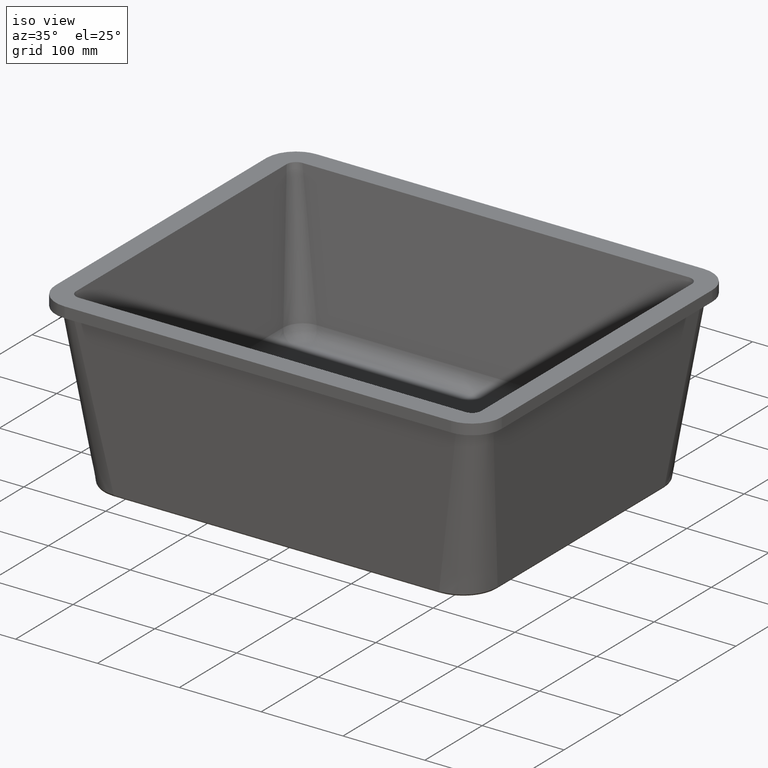
[diagram: clean part render]
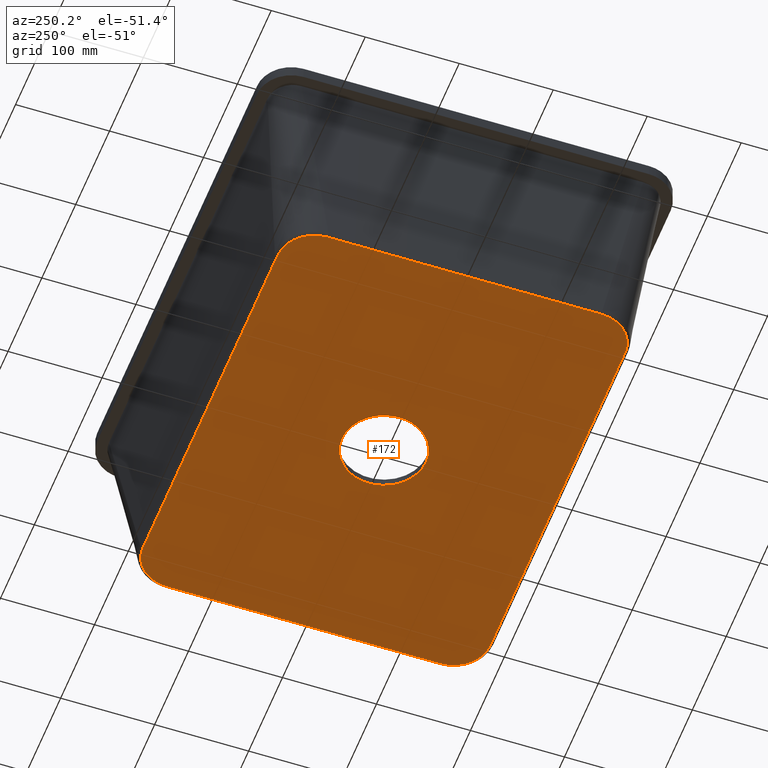
[diagram: tour spotlight — one face highlighted and labeled with its STEP entity id]
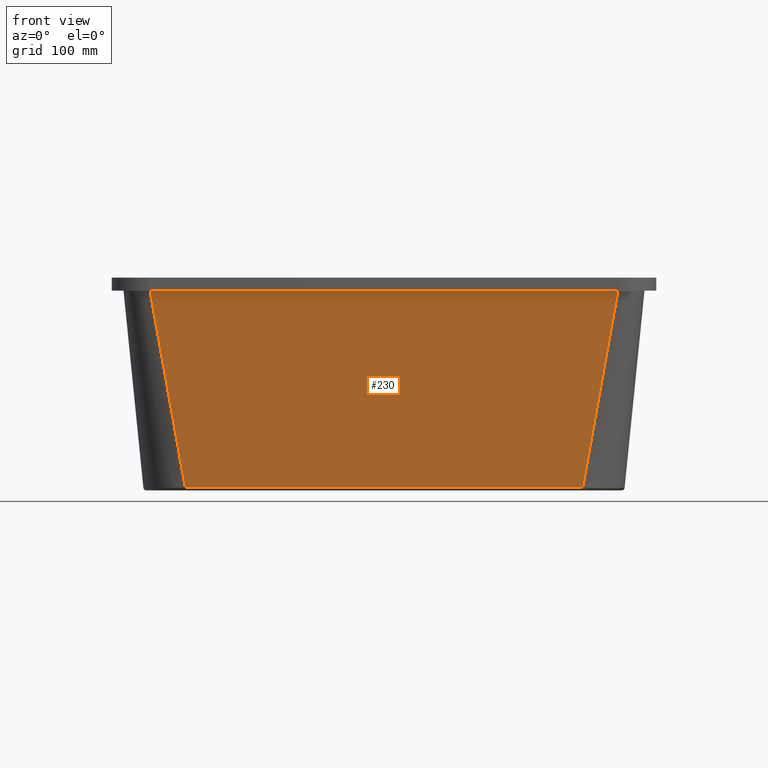
[diagram: tour spotlight — one face highlighted and labeled with its STEP entity id]
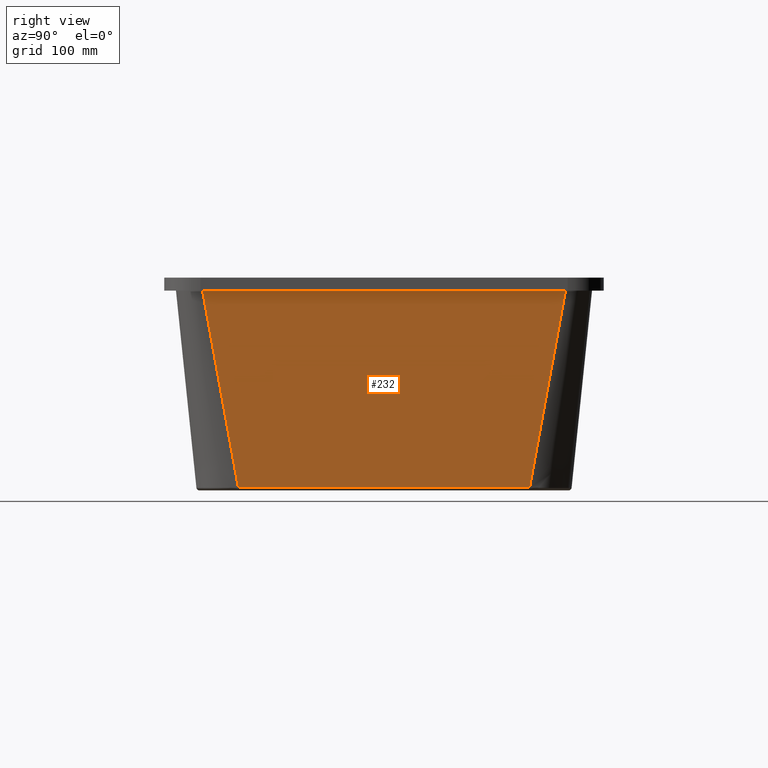
[diagram: tour spotlight — one face highlighted and labeled with its STEP entity id]
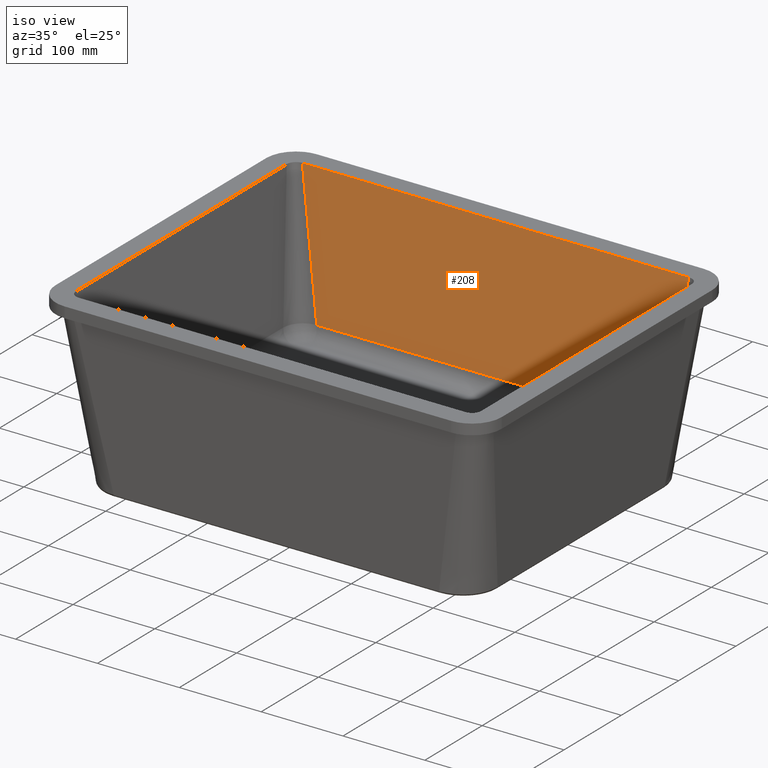
[diagram: tour spotlight — one face highlighted and labeled with its STEP entity id]
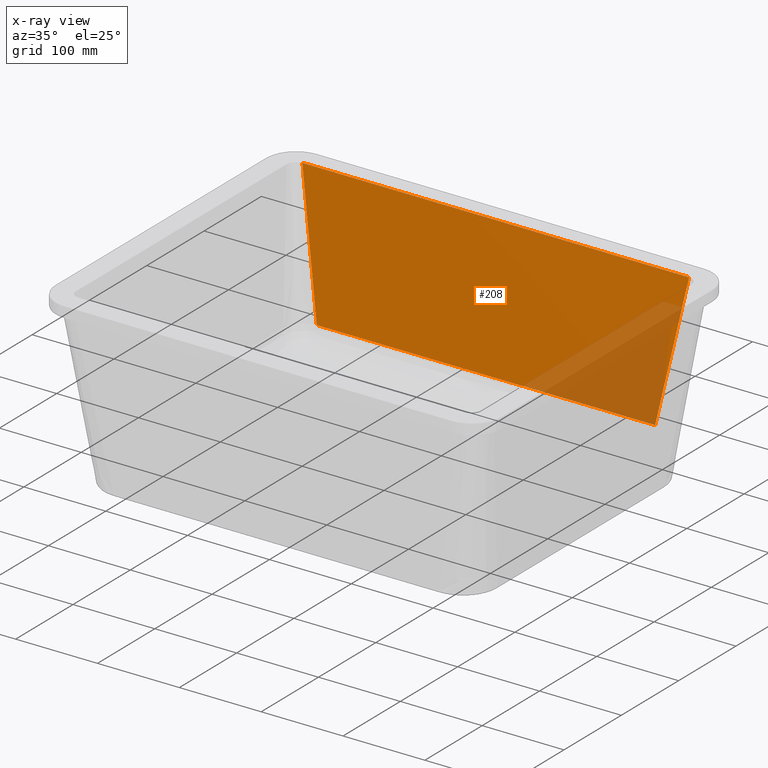
[diagram: x-ray of the same camera — body ghosted, this tour face saturated]
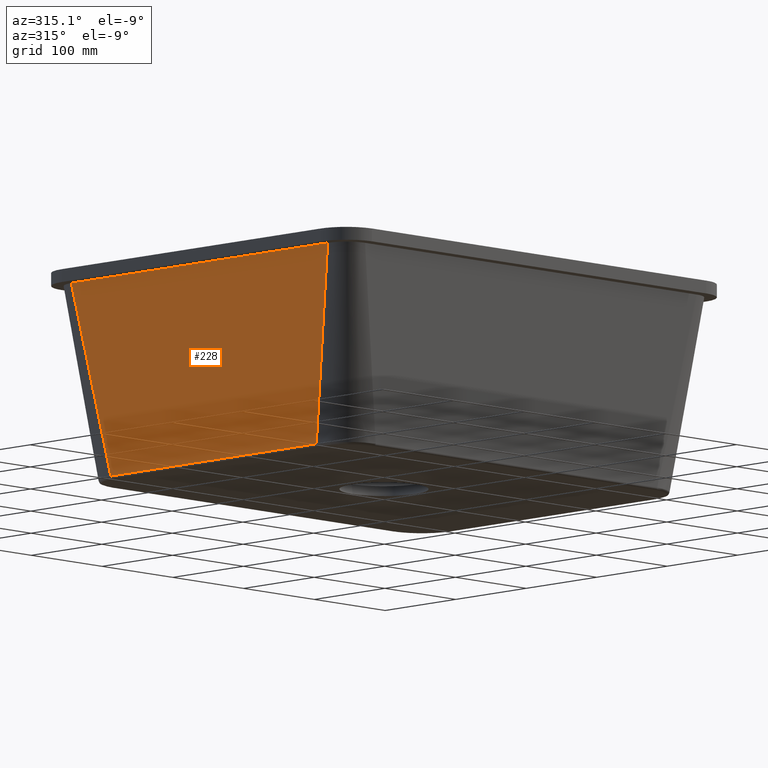
[diagram: tour spotlight — one face highlighted and labeled with its STEP entity id]
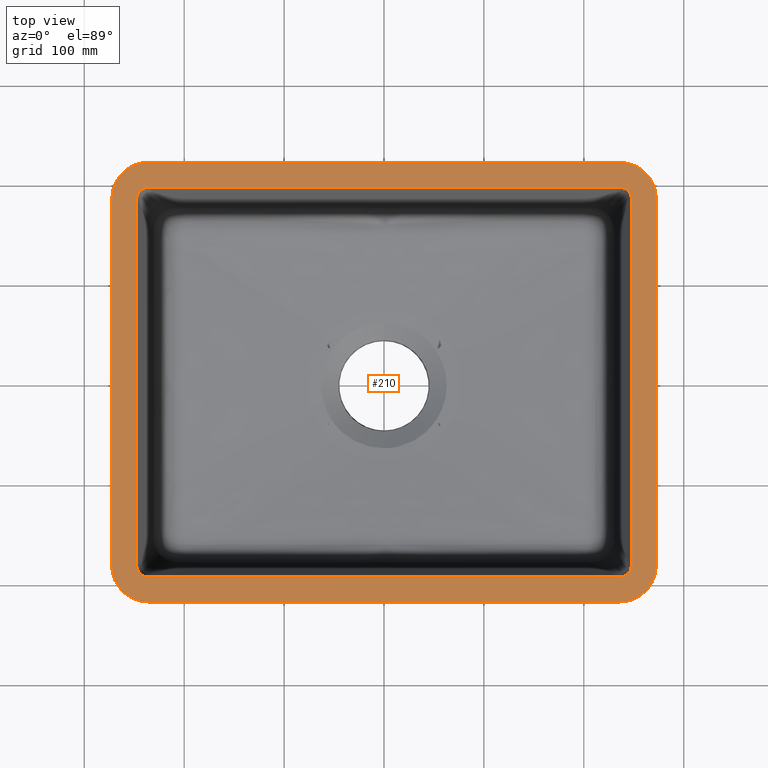
[diagram: tour spotlight — one face highlighted and labeled with its STEP entity id]
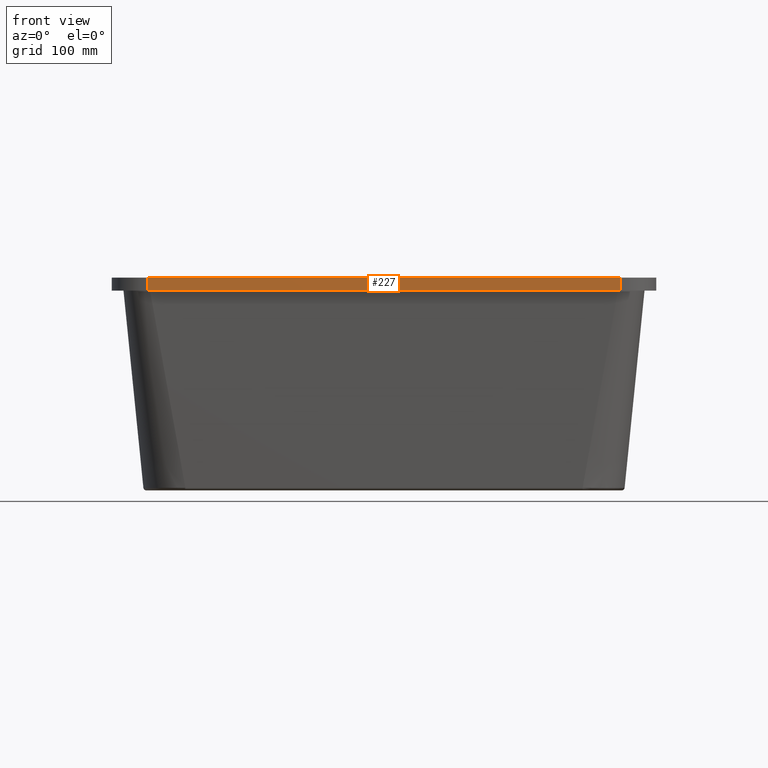
[diagram: tour spotlight — one face highlighted and labeled with its STEP entity id]
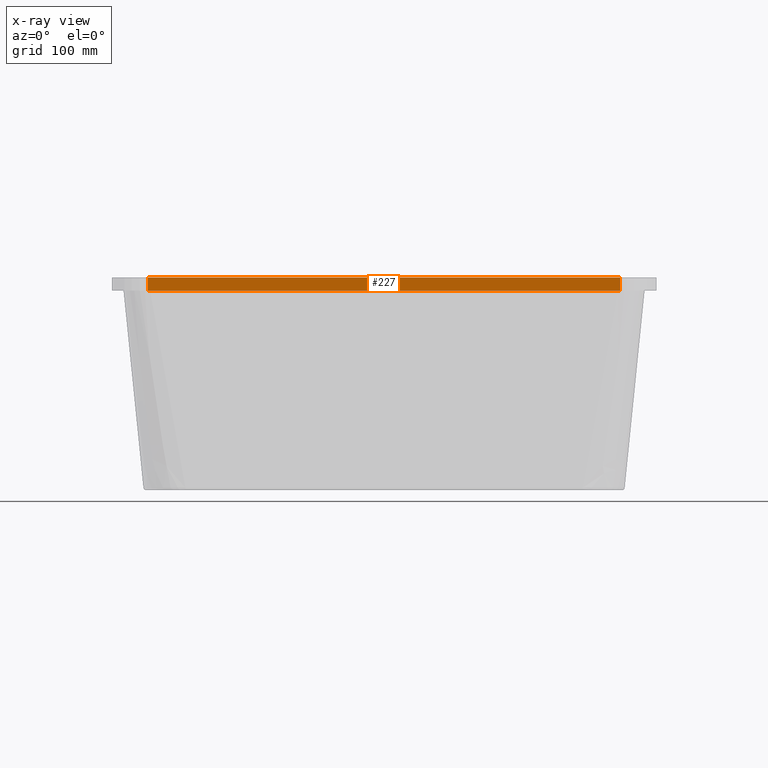
[diagram: x-ray of the same camera — body ghosted, this tour face saturated]
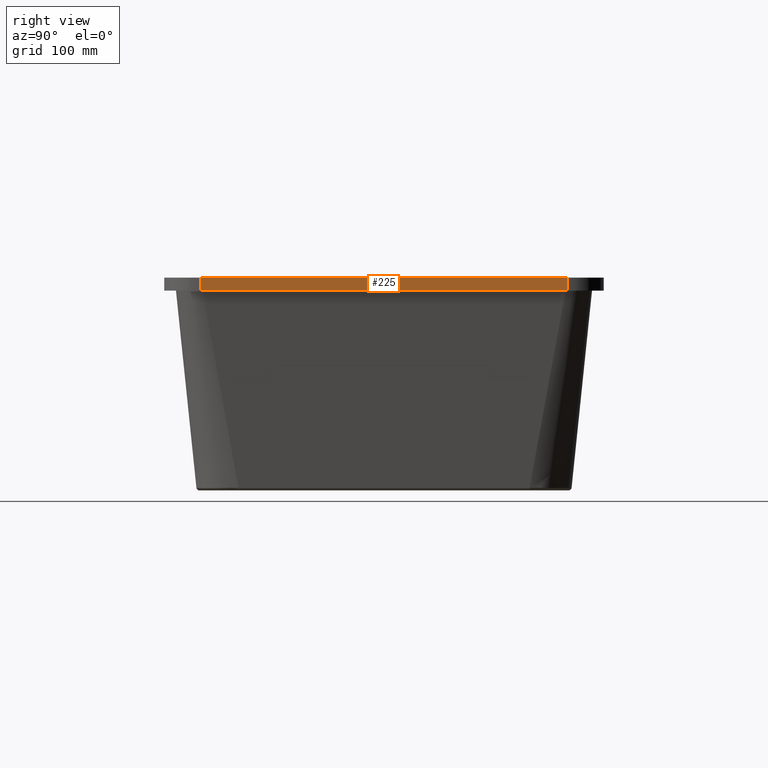
[diagram: tour spotlight — one face highlighted and labeled with its STEP entity id]
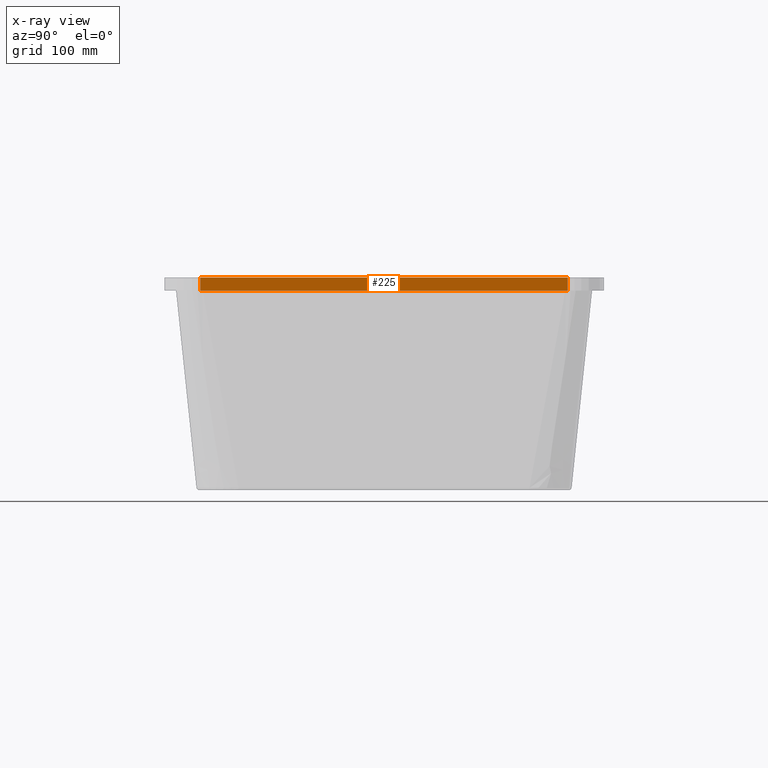
[diagram: x-ray of the same camera — body ghosted, this tour face saturated]
A machine part: a face-by-face anatomy tour. The part has 70 B-rep faces; the first image is the clean iso view, then the 8 largest visible faces are spotlighted one at a time (largest first), each with its STEP entity span.

Face 1 — auxiliary view, entity #172. In plain terms, the highlighted face is a freeform B-spline surface patch.
Definition (entity closure, byte-faithful):
#120=B_SPLINE_SURFACE_WITH_KNOTS('',1,1,((#1509,#1510),(#1511,#1512)),
 .UNSPECIFIED.,.F.,.F.,.F.,(2,2),(2,2),(0.,1.),(0.,1.),.UNSPECIFIED.);
#157=(
BOUNDED_CURVE()
B_SPLINE_CURVE(3,(#1407,#1408,#1409,#1410,#1411,#1412,#1413,#1414,#1415,
#1416,#1417,#1418,#1419,#1420,#1421,#1422),.UNSPECIFIED.,.F.,.F.)
B_SPLINE_CURVE_WITH_KNOTS((4,2,2,2,2,2,2,4),(0.,0.25,0.375,0.5,0.625,0.75,
0.875,1.),.UNSPECIFIED.)
CURVE()
GEOMETRIC_REPRESENTATION_ITEM()
RATIONAL_B_SPLINE_CURVE((1.,1.,1.,1.,1.,1.,1.,1.,1.,1.,1.,1.,1.,1.,1.,1.))
REPRESENTATION_ITEM('')
);
#158=(
BOUNDED_CURVE()
B_SPLINE_CURVE(3,(#1434,#1435,#1436,#1437,#1438,#1439,#1440,#1441,#1442,
#1443,#1444,#1445,#1446,#1447,#1448,#1449),.UNSPECIFIED.,.F.,.F.)
B_SPLINE_CURVE_WITH_KNOTS((4,2,2,2,2,2,2,4),(0.,0.125,0.25,0.375,0.5,0.625,
0.75,1.),.UNSPECIFIED.)
CURVE()
GEOMETRIC_REPRESENTATION_ITEM()
RATIONAL_B_SPLINE_CURVE((1.,1.,1.,1.,1.,1.,1.,1.,1.,1.,1.,1.,1.,1.,1.,1.))
REPRESENTATION_ITEM('')
);
#159=(
BOUNDED_CURVE()
B_SPLINE_CURVE(3,(#1461,#1462,#1463,#1464,#1465,#1466,#1467,#1468,#1469,
#1470,#1471,#1472,#1473,#1474,#1475,#1476),.UNSPECIFIED.,.F.,.F.)
B_SPLINE_CURVE_WITH_KNOTS((4,2,2,2,2,2,2,4),(0.,0.25,0.375,0.5,0.625,0.75,
0.875,1.),.UNSPECIFIED.)
CURVE()
GEOMETRIC_REPRESENTATION_ITEM()
RATIONAL_B_SPLINE_CURVE((1.,1.,1.,1.,1.,1.,1.,1.,1.,1.,1.,1.,1.,1.,1.,1.))
REPRESENTATION_ITEM('')
);
#160=(
BOUNDED_CURVE()
B_SPLINE_CURVE(3,(#1488,#1489,#1490,#1491,#1492,#1493,#1494,#1495,#1496,
#1497,#1498,#1499,#1500,#1501,#1502,#1503),.UNSPECIFIED.,.F.,.F.)
B_SPLINE_CURVE_WITH_KNOTS((4,2,2,2,2,2,2,4),(0.,0.125,0.25,0.375,0.5,0.625,
0.75,1.),.UNSPECIFIED.)
CURVE()
GEOMETRIC_REPRESENTATION_ITEM()
RATIONAL_B_SPLINE_CURVE((1.,1.,1.,1.,1.,1.,1.,1.,1.,1.,1.,1.,1.,1.,1.,1.))
REPRESENTATION_ITEM('')
);
#162=FACE_BOUND('',#311,.T.);
#163=FACE_BOUND('',#312,.T.);
#172=ADVANCED_FACE('',(#162,#163),#120,.F.);
#311=EDGE_LOOP('',(#405,#406));
#312=EDGE_LOOP('',(#407,#408,#409,#410,#411,#412,#413,#414,#415,#416,#417,
#418));
#405=ORIENTED_EDGE('',*,*,#883,.T.);
#406=ORIENTED_EDGE('',*,*,#888,.T.);
#407=ORIENTED_EDGE('',*,*,#889,.F.);
#408=ORIENTED_EDGE('',*,*,#890,.F.);
#409=ORIENTED_EDGE('',*,*,#891,.F.);
#410=ORIENTED_EDGE('',*,*,#892,.F.);
#411=ORIENTED_EDGE('',*,*,#893,.F.);
#412=ORIENTED_EDGE('',*,*,#894,.F.);
#413=ORIENTED_EDGE('',*,*,#895,.F.);
#414=ORIENTED_EDGE('',*,*,#896,.F.);
#415=ORIENTED_EDGE('',*,*,#897,.F.);
#416=ORIENTED_EDGE('',*,*,#898,.F.);
#417=ORIENTED_EDGE('',*,*,#899,.F.);
#418=ORIENTED_EDGE('',*,*,#900,.F.);
#765=VERTEX_POINT('',#1371);
#766=VERTEX_POINT('',#1372);
#769=VERTEX_POINT('',#1405);
#770=VERTEX_POINT('',#1406);
#771=VERTEX_POINT('',#1423);
#772=VERTEX_POINT('',#1428);
#773=VERTEX_POINT('',#1433);
#774=VERTEX_POINT('',#1450);
#775=VERTEX_POINT('',#1455);
#776=VERTEX_POINT('',#1460);
#777=VERTEX_POINT('',#1477);
#778=VERTEX_POINT('',#1482);
#779=VERTEX_POINT('',#1487);
#780=VERTEX_POINT('',#1504);
#883=EDGE_CURVE('',#765,#766,#1067,.T.);
#888=EDGE_CURVE('',#766,#765,#1070,.T.);
#889=EDGE_CURVE('',#769,#770,#1071,.T.);
#890=EDGE_CURVE('',#771,#769,#157,.T.);
#891=EDGE_CURVE('',#772,#771,#1072,.T.);
#892=EDGE_CURVE('',#773,#772,#1073,.T.);
#893=EDGE_CURVE('',#774,#773,#158,.T.);
#894=EDGE_CURVE('',#775,#774,#1074,.T.);
#895=EDGE_CURVE('',#776,#775,#1075,.T.);
#896=EDGE_CURVE('',#777,#776,#159,.T.);
#897=EDGE_CURVE('',#778,#777,#1076,.T.);
#898=EDGE_CURVE('',#779,#778,#1077,.T.);
#899=EDGE_CURVE('',#780,#779,#160,.T.);
#900=EDGE_CURVE('',#770,#780,#1078,.T.);
#1067=B_SPLINE_CURVE_WITH_KNOTS('',3,(#1353,#1354,#1355,#1356,#1357,#1358,
#1359,#1360,#1361,#1362,#1363,#1364,#1365,#1366,#1367,#1368,#1369,#1370),
 .UNSPECIFIED.,.F.,.F.,(4,2,2,2,2,2,2,2,4),(0.,0.125,0.25,0.375,0.5,0.625,
0.75,0.875,1.),.UNSPECIFIED.);
#1070=B_SPLINE_CURVE_WITH_KNOTS('',3,(#1382,#1383,#1384,#1385,#1386,#1387,
#1388,#1389,#1390,#1391,#1392,#1393,#1394,#1395,#1396,#1397,#1398,#1399),
 .UNSPECIFIED.,.F.,.F.,(4,2,2,2,2,2,2,2,4),(0.,0.125,0.25,0.375,0.5,0.625,
0.75,0.875,1.),.UNSPECIFIED.);
#1071=B_SPLINE_CURVE_WITH_KNOTS('',3,(#1401,#1402,#1403,#1404),
 .UNSPECIFIED.,.F.,.F.,(4,4),(0.,1.),.UNSPECIFIED.);
#1072=B_SPLINE_CURVE_WITH_KNOTS('',3,(#1424,#1425,#1426,#1427),
 .UNSPECIFIED.,.F.,.F.,(4,4),(0.,1.),.UNSPECIFIED.);
#1073=B_SPLINE_CURVE_WITH_KNOTS('',3,(#1429,#1430,#1431,#1432),
 .UNSPECIFIED.,.F.,.F.,(4,4),(0.,1.),.UNSPECIFIED.);
#1074=B_SPLINE_CURVE_WITH_KNOTS('',3,(#1451,#1452,#1453,#1454),
 .UNSPECIFIED.,.F.,.F.,(4,4),(0.,1.),.UNSPECIFIED.);
#1075=B_SPLINE_CURVE_WITH_KNOTS('',3,(#1456,#1457,#1458,#1459),
 .UNSPECIFIED.,.F.,.F.,(4,4),(0.,1.),.UNSPECIFIED.);
#1076=B_SPLINE_CURVE_WITH_KNOTS('',3,(#1478,#1479,#1480,#1481),
 .UNSPECIFIED.,.F.,.F.,(4,4),(0.,1.),.UNSPECIFIED.);
#1077=B_SPLINE_CURVE_WITH_KNOTS('',3,(#1483,#1484,#1485,#1486),
 .UNSPECIFIED.,.F.,.F.,(4,4),(0.,1.),.UNSPECIFIED.);
#1078=B_SPLINE_CURVE_WITH_KNOTS('',3,(#1505,#1506,#1507,#1508),
 .UNSPECIFIED.,.F.,.F.,(4,4),(0.,1.),.UNSPECIFIED.);
#1353=CARTESIAN_POINT('',(-1.56543446082893E-14,-44.7354157086448,-212.999999999934));
#1354=CARTESIAN_POINT('',(5.87507504538506,-44.7354157086448,-212.999999999934));
#1355=CARTESIAN_POINT('',(11.6925928217986,-43.5781055769196,-212.999999999934));
#1356=CARTESIAN_POINT('',(22.5464120415282,-39.0821643262822,-212.999999999934));
#1357=CARTESIAN_POINT('',(27.4791662069128,-35.7863582545704,-212.999999999934));
#1358=CARTESIAN_POINT('',(35.7862654066512,-27.4790733589936,-212.999999999934));
#1359=CARTESIAN_POINT('',(39.0822856374443,-22.5464622927028,-212.999999999934));
#1360=CARTESIAN_POINT('',(43.5779842657577,-11.6925425706239,-212.999999999934));
#1361=CARTESIAN_POINT('',(44.7354813618992,-5.87407182987342,-212.999999999934));
#1362=CARTESIAN_POINT('',(44.7353500553907,5.87407182987357,-212.999999999934));
#1363=CARTESIAN_POINT('',(43.5781055772131,11.6925928208449,-212.999999999934));
#1364=CARTESIAN_POINT('',(39.0821643259888,22.546412042482,-212.999999999934));
#1365=CARTESIAN_POINT('',(35.786358256596,27.4791662046622,-212.999999999934));
#1366=CARTESIAN_POINT('',(27.479073356968,35.7862654089019,-212.999999999934));
#1367=CARTESIAN_POINT('',(22.5464622929202,39.0822856372298,-212.999999999934));
#1368=CARTESIAN_POINT('',(11.6925425704066,43.5779842659722,-212.999999999934));
#1369=CARTESIAN_POINT('',(5.87440191187048,44.735415708645,-212.999999999934));
#1370=CARTESIAN_POINT('',(0.,44.735415708645,-212.999999999934));
#1371=CARTESIAN_POINT('',(-6.3554323245927E-14,-44.7354198358257,-212.999952826041));
#1372=CARTESIAN_POINT('',(-5.54645300874058E-14,44.7354198358258,-212.999952826041));
#1382=CARTESIAN_POINT('',(-5.23802823096001E-13,44.735415708645,-212.999999999934));
#1383=CARTESIAN_POINT('',(-5.87507504538545,44.735415708645,-212.999999999934));
#1384=CARTESIAN_POINT('',(-11.6925928206659,43.5781055771452,-212.999999999934));
#1385=CARTESIAN_POINT('',(-22.546412042662,39.0821643260568,-212.999999999934));
#1386=CARTESIAN_POINT('',(-27.4791662072792,35.7863582544485,-212.999999999934));
#1387=CARTESIAN_POINT('',(-35.7862654062859,27.4790733591157,-212.999999999934));
#1388=CARTESIAN_POINT('',(-39.0822856374446,22.5464622927032,-212.999999999934));
#1389=CARTESIAN_POINT('',(-43.5779842657583,11.6925425706236,-212.999999999934));
#1390=CARTESIAN_POINT('',(-44.7354813620831,5.87407182870765,-212.999999999934));
#1391=CARTESIAN_POINT('',(-44.7353500552078,-5.87407182870743,-212.999999999934));
#1392=CARTESIAN_POINT('',(-43.5781055776428,-11.6925928193659,-212.999999999934));
#1393=CARTESIAN_POINT('',(-39.0821643255602,-22.5464120439608,-212.999999999934));
#1394=CARTESIAN_POINT('',(-35.7863582546917,-27.4791662069943,-212.999999999934));
#1395=CARTESIAN_POINT('',(-27.4790733588734,-35.7862654065696,-212.999999999934));
#1396=CARTESIAN_POINT('',(-22.5464622913616,-39.0822856380275,-212.999999999934));
#1397=CARTESIAN_POINT('',(-11.6925425719664,-43.5779842651743,-212.999999999934));
#1398=CARTESIAN_POINT('',(-5.87440191064468,-44.7354157086449,-212.999999999934));
#1399=CARTESIAN_POINT('',(-5.55111512312578E-13,-44.7354157086448,-212.999999999934));
#1401=CARTESIAN_POINT('',(-198.805185604876,-184.785871795354,-212.999999999934));
#1402=CARTESIAN_POINT('',(-132.536790403251,-184.785871795354,-212.999999999934));
#1403=CARTESIAN_POINT('',(-66.2683952016253,-184.785871795354,-212.999999999934));
#1404=CARTESIAN_POINT('',(5.55111512312578E-14,-184.785871795354,-212.999999999934));
#1405=CARTESIAN_POINT('',(-198.805185604876,-184.785871795354,-212.999999999934));
#1406=CARTESIAN_POINT('',(0.000754325076873785,-184.785871795354,-212.999999999934));
#1407=CARTESIAN_POINT('',(-237.873638284546,-145.678859501033,-212.999999999934));
#1408=CARTESIAN_POINT('',(-237.873638284689,-150.82222054371,-212.999999999934));
#1409=CARTESIAN_POINT('',(-236.854450106116,-155.978208137484,-212.999999999934));
#1410=CARTESIAN_POINT('',(-233.937723808414,-163.035738064138,-212.999999999934));
#1411=CARTESIAN_POINT('',(-232.725251547604,-165.311124399883,-212.999999999934));
#1412=CARTESIAN_POINT('',(-229.869384491732,-169.585583102005,-212.999999999934));
#1413=CARTESIAN_POINT('',(-228.251642620895,-171.553933735067,-212.999999999934));
#1414=CARTESIAN_POINT('',(-224.646528285539,-175.161762520158,-212.999999999934));
#1415=CARTESIAN_POINT('',(-222.635282417874,-176.813517234454,-212.999999999935));
#1416=CARTESIAN_POINT('',(-218.387196915651,-179.649509085898,-212.999999999934));
#1417=CARTESIAN_POINT('',(-216.142155903128,-180.849247781116,-212.999999999934));
#1418=CARTESIAN_POINT('',(-211.40708241728,-182.8068084288,-212.999999999934));
#1419=CARTESIAN_POINT('',(-208.923651096491,-183.554655017744,-212.999999999935));
#1420=CARTESIAN_POINT('',(-203.926588101796,-184.538175362437,-212.999999999934));
#1421=CARTESIAN_POINT('',(-201.386633323958,-184.785871795067,-212.999999999934));
#1422=CARTESIAN_POINT('',(-198.805185604876,-184.785871795354,-212.999999999934));
#1423=CARTESIAN_POINT('',(-237.873638284546,-145.678859501033,-212.999999999934));
#1424=CARTESIAN_POINT('',(-237.873638284545,6.19328943063164E-15,-212.999999999934));
#1425=CARTESIAN_POINT('',(-237.873638284546,-48.5596198336777,-212.999999999935));
#1426=CARTESIAN_POINT('',(-237.873638284546,-97.1192396673553,-212.999999999935));
#1427=CARTESIAN_POINT('',(-237.873638284547,-145.678859501033,-212.999999999936));
#1428=CARTESIAN_POINT('',(-237.873638284545,-0.000418361469064171,-212.999999999934));
#1429=CARTESIAN_POINT('',(-237.873638284547,145.678859501033,-212.999999999935));
#1430=CARTESIAN_POINT('',(-237.873638284546,97.1192396673553,-212.999999999934));
#1431=CARTESIAN_POINT('',(-237.873638284546,48.5596198336777,-212.999999999934));
#1432=CARTESIAN_POINT('',(-237.873638284545,-6.19328943062187E-15,-212.999999999933));
#1433=CARTESIAN_POINT('',(-237.873638284546,145.678859501033,-212.999999999934));
#1434=CARTESIAN_POINT('',(-198.805185604876,184.785871795354,-212.999999999934));
#1435=CARTESIAN_POINT('',(-201.386633323958,184.785871795067,-212.999999999934));
#1436=CARTESIAN_POINT('',(-203.926588101796,184.538175362401,-212.999999999935));
#1437=CARTESIAN_POINT('',(-208.923651096491,183.554655017779,-212.999999999934));
#1438=CARTESIAN_POINT('',(-211.407082417351,182.806808428764,-212.999999999934));
#1439=CARTESIAN_POINT('',(-216.142155903056,180.849247781151,-212.999999999934));
#1440=CARTESIAN_POINT('',(-218.387196915545,179.649509085685,-212.999999999934));
#1441=CARTESIAN_POINT('',(-222.635282417981,176.813517234666,-212.999999999935));
#1442=CARTESIAN_POINT('',(-224.646528285503,175.161762519875,-212.999999999934));
#1443=CARTESIAN_POINT('',(-228.251642620931,171.55393373535,-212.999999999934));
#1444=CARTESIAN_POINT('',(-229.869384491732,169.585583102005,-212.999999999934));
#1445=CARTESIAN_POINT('',(-232.725251547604,165.311124399883,-212.999999999934));
#1446=CARTESIAN_POINT('',(-233.937723808414,163.035738064138,-212.999999999934));
#1447=CARTESIAN_POINT('',(-236.854450106116,155.978208137484,-212.999999999934));
#1448=CARTESIAN_POINT('',(-237.873638284689,150.82222054371,-212.999999999934));
#1449=CARTESIAN_POINT('',(-237.873638284546,145.678859501033,-212.999999999934));
#1450=CARTESIAN_POINT('',(-198.805185604876,184.785871795354,-212.999999999934));
#1451=CARTESIAN_POINT('',(5.55111512312578E-14,184.785871795354,-212.999999999934));
#1452=CARTESIAN_POINT('',(-66.2683952016253,184.785871795354,-212.999999999934));
#1453=CARTESIAN_POINT('',(-132.536790403251,184.785871795354,-212.999999999934));
#1454=CARTESIAN_POINT('',(-198.805185604876,184.785871795354,-212.999999999934));
#1455=CARTESIAN_POINT('',(0.000754325076870316,184.785871795354,-212.999999999934));
#1456=CARTESIAN_POINT('',(198.805185604876,184.785871795354,-212.999999999934));
#1457=CARTESIAN_POINT('',(132.536790403251,184.785871795354,-212.999999999934));
#1458=CARTESIAN_POINT('',(66.2683952016253,184.785871795354,-212.999999999934));
#1459=CARTESIAN_POINT('',(-5.55111512312578E-14,184.785871795354,-212.999999999934));
#1460=CARTESIAN_POINT('',(198.805185604876,184.785871795354,-212.999999999934));
#1461=CARTESIAN_POINT('',(237.873638284546,145.678859501033,-212.999999999934));
#1462=CARTESIAN_POINT('',(237.873638284689,150.82222054371,-212.999999999934));
#1463=CARTESIAN_POINT('',(236.854450106116,155.978208137484,-212.999999999934));
#1464=CARTESIAN_POINT('',(233.937723808414,163.035738064138,-212.999999999934));
#1465=CARTESIAN_POINT('',(232.725251547604,165.311124399883,-212.999999999934));
#1466=CARTESIAN_POINT('',(229.869384491732,169.585583102005,-212.999999999934));
#1467=CARTESIAN_POINT('',(228.251642620895,171.553933735067,-212.999999999934));
#1468=CARTESIAN_POINT('',(224.646528285539,175.161762520158,-212.999999999934));
#1469=CARTESIAN_POINT('',(222.635282417874,176.813517234454,-212.999999999935));
#1470=CARTESIAN_POINT('',(218.387196915651,179.649509085898,-212.999999999934));
#1471=CARTESIAN_POINT('',(216.142155903128,180.849247781116,-212.999999999934));
#1472=CARTESIAN_POINT('',(211.40708241728,182.8068084288,-212.999999999934));
#1473=CARTESIAN_POINT('',(208.923651096491,183.554655017744,-212.999999999935));
#1474=CARTESIAN_POINT('',(203.926588101796,184.538175362437,-212.999999999934));
#1475=CARTESIAN_POINT('',(201.386633323958,184.785871795067,-212.999999999934));
#1476=CARTESIAN_POINT('',(198.805185604876,184.785871795354,-212.999999999934));
#1477=CARTESIAN_POINT('',(237.873638284546,145.678859501033,-212.999999999934));
#1478=CARTESIAN_POINT('',(237.873638284545,-6.19328943063164E-15,-212.999999999934));
#1479=CARTESIAN_POINT('',(237.873638284546,48.5596198336777,-212.999999999935));
#1480=CARTESIAN_POINT('',(237.873638284546,97.1192396673553,-212.999999999935));
#1481=CARTESIAN_POINT('',(237.873638284547,145.678859501033,-212.999999999936));
#1482=CARTESIAN_POINT('',(237.873638284545,-0.000418361469049635,-212.999999999934));
#1483=CARTESIAN_POINT('',(237.873638284547,-145.678859501033,-212.999999999935));
#1484=CARTESIAN_POINT('',(237.873638284546,-97.1192396673553,-212.999999999934));
#1485=CARTESIAN_POINT('',(237.873638284546,-48.5596198336777,-212.999999999934));
#1486=CARTESIAN_POINT('',(237.873638284545,6.19328943062188E-15,-212.999999999933));
#1487=CARTESIAN_POINT('',(237.873638284546,-145.678859501033,-212.999999999934));
#1488=CARTESIAN_POINT('',(198.805185604876,-184.785871795354,-212.999999999934));
#1489=CARTESIAN_POINT('',(201.386633323958,-184.785871795067,-212.999999999934));
#1490=CARTESIAN_POINT('',(203.926588101796,-184.538175362401,-212.999999999935));
#1491=CARTESIAN_POINT('',(208.923651096491,-183.554655017779,-212.999999999934));
#1492=CARTESIAN_POINT('',(211.407082417351,-182.806808428764,-212.999999999934));
#1493=CARTESIAN_POINT('',(216.142155903056,-180.849247781151,-212.999999999934));
#1494=CARTESIAN_POINT('',(218.387196915545,-179.649509085685,-212.999999999934));
#1495=CARTESIAN_POINT('',(222.635282417981,-176.813517234666,-212.999999999935));
#1496=CARTESIAN_POINT('',(224.646528285503,-175.161762519875,-212.999999999934));
#1497=CARTESIAN_POINT('',(228.251642620931,-171.55393373535,-212.999999999934));
#1498=CARTESIAN_POINT('',(229.869384491732,-169.585583102005,-212.999999999934));
#1499=CARTESIAN_POINT('',(232.725251547604,-165.311124399883,-212.999999999934));
#1500=CARTESIAN_POINT('',(233.937723808414,-163.035738064138,-212.999999999934));
#1501=CARTESIAN_POINT('',(236.854450106116,-155.978208137484,-212.999999999934));
#1502=CARTESIAN_POINT('',(237.873638284689,-150.82222054371,-212.999999999934));
#1503=CARTESIAN_POINT('',(237.873638284546,-145.678859501033,-212.999999999934));
#1504=CARTESIAN_POINT('',(198.805185604876,-184.785871795354,-212.999999999934));
#1505=CARTESIAN_POINT('',(-5.55111512312578E-14,-184.785871795354,-212.999999999934));
#1506=CARTESIAN_POINT('',(66.2683952016253,-184.785871795354,-212.999999999934));
#1507=CARTESIAN_POINT('',(132.536790403251,-184.785871795354,-212.999999999934));
#1508=CARTESIAN_POINT('',(198.805185604876,-184.785871795354,-212.999999999934));
#1509=CARTESIAN_POINT('',(260.969870586607,-313.163844703928,-212.999999999934));
#1510=CARTESIAN_POINT('',(-301.565183788968,-313.163844703928,-212.999999999934));
#1511=CARTESIAN_POINT('',(260.969870586607,434.949784311011,-212.999999999934));
#1512=CARTESIAN_POINT('',(-301.565183788968,434.949784311011,-212.999999999934));

Face 2 — front view, entity #230. In plain terms, the highlighted planar face has unit normal (0, -0.9947, -0.1031).
Definition (entity closure, byte-faithful):
#60=PLANE('',#1240);
#85=LINE('',#16493,#109);
#109=VECTOR('',#1333,1.);
#230=ADVANCED_FACE('',(#300),#60,.T.);
#300=FACE_OUTER_BOUND('',#372,.T.);
#372=EDGE_LOOP('',(#698,#699,#700,#701,#702,#703,#704));
#698=ORIENTED_EDGE('',*,*,#1012,.T.);
#699=ORIENTED_EDGE('',*,*,#1046,.F.);
#700=ORIENTED_EDGE('',*,*,#1047,.F.);
#701=ORIENTED_EDGE('',*,*,#1048,.F.);
#702=ORIENTED_EDGE('',*,*,#1044,.T.);
#703=ORIENTED_EDGE('',*,*,#1043,.T.);
#704=ORIENTED_EDGE('',*,*,#1013,.T.);
#850=VERTEX_POINT('',#16014);
#851=VERTEX_POINT('',#16074);
#852=VERTEX_POINT('',#16076);
#869=VERTEX_POINT('',#16423);
#870=VERTEX_POINT('',#16428);
#871=VERTEX_POINT('',#16487);
#872=VERTEX_POINT('',#16492);
#1012=EDGE_CURVE('',#851,#852,#1175,.T.);
#1013=EDGE_CURVE('',#850,#851,#1176,.T.);
#1043=EDGE_CURVE('',#869,#850,#1189,.T.);
#1044=EDGE_CURVE('',#870,#869,#1190,.T.);
#1046=EDGE_CURVE('',#871,#852,#1192,.T.);
#1047=EDGE_CURVE('',#872,#871,#1193,.T.);
#1048=EDGE_CURVE('',#870,#872,#85,.T.);
#1175=B_SPLINE_CURVE_WITH_KNOTS('',3,(#16077,#16078,#16079,#16080,#16081,
#16082,#16083,#16084,#16085,#16086),.UNSPECIFIED.,.F.,.F.,(4,2,2,2,4),(0.,
0.0301766799060292,0.150898327558988,0.633784918170825,1.),
 .UNSPECIFIED.);
#1176=B_SPLINE_CURVE_WITH_KNOTS('',3,(#16088,#16089,#16090,#16091,#16092,
#16093,#16094,#16095,#16096,#16097),.UNSPECIFIED.,.F.,.F.,(4,2,2,2,4),(0.,
0.366215081829175,0.849101672441012,0.969823320093971,1.),.UNSPECIFIED.);
#1189=B_SPLINE_CURVE_WITH_KNOTS('',3,(#16415,#16416,#16417,#16418,#16419,
#16420,#16421,#16422),.UNSPECIFIED.,.F.,.F.,(4,2,2,4),(0.,0.0454545454545455,
0.715340702639827,1.),.UNSPECIFIED.);
#1190=B_SPLINE_CURVE_WITH_KNOTS('',3,(#16424,#16425,#16426,#16427),
 .UNSPECIFIED.,.F.,.F.,(4,4),(0.,1.),.UNSPECIFIED.);
#1192=B_SPLINE_CURVE_WITH_KNOTS('',3,(#16479,#16480,#16481,#16482,#16483,
#16484,#16485,#16486),.UNSPECIFIED.,.F.,.F.,(4,2,2,4),(0.,0.045454545454545,
0.715340702639827,1.),.UNSPECIFIED.);
#1193=B_SPLINE_CURVE_WITH_KNOTS('',3,(#16488,#16489,#16490,#16491),
 .UNSPECIFIED.,.F.,.F.,(4,4),(0.,1.),.UNSPECIFIED.);
#1240=AXIS2_PLACEMENT_3D('',#16494,#1334,#1335);
#1333=DIRECTION('',(1.,0.,0.));
#1334=DIRECTION('',(0.,-0.994666723807651,-0.103141206846504));
#1335=DIRECTION('',(0.,-0.103141206846504,0.994666723807652));
#16014=CARTESIAN_POINT('',(-198.805185604876,-187.769871966777,-210.309423620474));
#16074=CARTESIAN_POINT('',(0.000309735592279339,-187.769871966777,-210.309423620474));
#16076=CARTESIAN_POINT('',(198.805185604876,-187.769871966777,-210.309423620474));
#16077=CARTESIAN_POINT('',(0.000741939617045033,-187.769871966777,-210.309423620474));
#16078=CARTESIAN_POINT('',(2.00049462641129,-187.769871966777,-210.309423620474));
#16079=CARTESIAN_POINT('',(4.00024731320553,-187.769871966777,-210.309423620474));
#16080=CARTESIAN_POINT('',(13.9999999999998,-187.769871966777,-210.309423620474));
#16081=CARTESIAN_POINT('',(21.9999999999998,-187.769871966777,-210.309423620474));
#16082=CARTESIAN_POINT('',(61.9999999999998,-187.769871966777,-210.309423620474));
#16083=CARTESIAN_POINT('',(93.9999999999998,-187.769871966777,-210.309423620474));
#16084=CARTESIAN_POINT('',(150.268395201625,-187.769871966777,-210.309423620474));
#16085=CARTESIAN_POINT('',(174.536790403251,-187.769871966777,-210.309423620474));
#16086=CARTESIAN_POINT('',(198.805185604876,-187.769871966777,-210.309423620474));
#16088=CARTESIAN_POINT('',(-198.805185604876,-187.769871966777,-210.309423620474));
#16089=CARTESIAN_POINT('',(-174.536790403251,-187.769871966777,-210.309423620474));
#16090=CARTESIAN_POINT('',(-150.268395201625,-187.769871966777,-210.309423620474));
#16091=CARTESIAN_POINT('',(-93.9999999999998,-187.769871966777,-210.309423620474));
#16092=CARTESIAN_POINT('',(-61.9999999999998,-187.769871966777,-210.309423620474));
#16093=CARTESIAN_POINT('',(-21.9999999999998,-187.769871966777,-210.309423620474));
#16094=CARTESIAN_POINT('',(-13.9999999999998,-187.769871966777,-210.309423620474));
#16095=CARTESIAN_POINT('',(-4.00024731320553,-187.769871966777,-210.309423620474));
#16096=CARTESIAN_POINT('',(-2.00049462641129,-187.769871966777,-210.309423620474));
#16097=CARTESIAN_POINT('',(-0.000741939617045033,-187.769871966777,-210.309423620474));
#16415=CARTESIAN_POINT('',(-236.052011395359,-209.307681498882,-2.60444226249758));
#16416=CARTESIAN_POINT('',(-235.430614762641,-208.948361690138,-6.06962817499864));
#16417=CARTESIAN_POINT('',(-234.809218129924,-208.589041881393,-9.5348140874997));
#16418=CARTESIAN_POINT('',(-225.029991444864,-202.934248023283,-64.0681616468748));
#16419=CARTESIAN_POINT('',(-215.87216139252,-197.638773973917,-115.136323293755));
#16420=CARTESIAN_POINT('',(-202.82283210545,-190.09305799029,-187.90522745625));
#16421=CARTESIAN_POINT('',(-198.93133287072,-187.842816056027,-209.60596997189));
#16422=CARTESIAN_POINT('',(-195.03983363599,-185.592574121763,-231.306712487531));
#16423=CARTESIAN_POINT('',(-206.714331340181,-192.343299924554,-166.204484940602));
#16424=CARTESIAN_POINT('',(-234.18782149737,-208.229722072744,-12.9999999990858));
#16425=CARTESIAN_POINT('',(-225.029991444973,-202.934248023347,-64.0681616462648));
#16426=CARTESIAN_POINT('',(-215.872161392574,-197.638773973949,-115.13632329345));
#16427=CARTESIAN_POINT('',(-206.71433134018,-192.343299924553,-166.20448494061));
#16428=CARTESIAN_POINT('',(-234.18782149737,-208.229722072744,-12.9999999990858));
#16479=CARTESIAN_POINT('',(236.052011395359,-209.307681498882,-2.60444226249758));
#16480=CARTESIAN_POINT('',(235.430614762641,-208.948361690138,-6.06962817499864));
#16481=CARTESIAN_POINT('',(234.809218129924,-208.589041881393,-9.5348140874997));
#16482=CARTESIAN_POINT('',(225.029991444864,-202.934248023283,-64.0681616468748));
#16483=CARTESIAN_POINT('',(215.87216139252,-197.638773973917,-115.136323293755));
#16484=CARTESIAN_POINT('',(202.82283210545,-190.09305799029,-187.90522745625));
#16485=CARTESIAN_POINT('',(198.93133287072,-187.842816056027,-209.60596997189));
#16486=CARTESIAN_POINT('',(195.03983363599,-185.592574121763,-231.306712487531));
#16487=CARTESIAN_POINT('',(206.71433134018,-192.343299924553,-166.204484940612));
#16488=CARTESIAN_POINT('',(234.18782149737,-208.229722072744,-12.9999999990858));
#16489=CARTESIAN_POINT('',(225.029991444973,-202.934248023347,-64.0681616462648));
#16490=CARTESIAN_POINT('',(215.872161392574,-197.638773973949,-115.13632329345));
#16491=CARTESIAN_POINT('',(206.71433134018,-192.343299924553,-166.20448494061));
#16492=CARTESIAN_POINT('',(234.187821498578,-208.229722072649,-13.));
#16493=CARTESIAN_POINT('',(294.998988260585,-208.229722072649,-13.));
#16494=CARTESIAN_POINT('',(294.998988260585,-210.131208194402,5.33743300972569));

Face 3 — right view, entity #232. In plain terms, the highlighted planar face has unit normal (0.995, 0, -0.1004).
Definition (entity closure, byte-faithful):
#61=PLANE('',#1241);
#86=LINE('',#16565,#110);
#110=VECTOR('',#1336,1.);
#232=ADVANCED_FACE('',(#302),#61,.T.);
#302=FACE_OUTER_BOUND('',#374,.T.);
#374=EDGE_LOOP('',(#711,#712,#713,#714,#715,#716,#717));
#711=ORIENTED_EDGE('',*,*,#1052,.F.);
#712=ORIENTED_EDGE('',*,*,#1053,.F.);
#713=ORIENTED_EDGE('',*,*,#1054,.F.);
#714=ORIENTED_EDGE('',*,*,#1050,.T.);
#715=ORIENTED_EDGE('',*,*,#1049,.T.);
#716=ORIENTED_EDGE('',*,*,#1017,.T.);
#717=ORIENTED_EDGE('',*,*,#1019,.T.);
#853=VERTEX_POINT('',#16100);
#854=VERTEX_POINT('',#16160);
#855=VERTEX_POINT('',#16175);
#873=VERTEX_POINT('',#16499);
#874=VERTEX_POINT('',#16504);
#875=VERTEX_POINT('',#16559);
#876=VERTEX_POINT('',#16564);
#1017=EDGE_CURVE('',#853,#854,#1178,.T.);
#1019=EDGE_CURVE('',#854,#855,#1179,.T.);
#1049=EDGE_CURVE('',#873,#853,#1194,.T.);
#1050=EDGE_CURVE('',#874,#873,#1195,.T.);
#1052=EDGE_CURVE('',#875,#855,#1197,.T.);
#1053=EDGE_CURVE('',#876,#875,#1198,.T.);
#1054=EDGE_CURVE('',#874,#876,#86,.T.);
#1178=B_SPLINE_CURVE_WITH_KNOTS('',3,(#16161,#16162,#16163,#16164,#16165,
#16166,#16167,#16168,#16169,#16170,#16171,#16172),.UNSPECIFIED.,.F.,.F.,
(4,2,2,2,2,4),(0.,0.0411864838903236,0.205932419451618,0.864916161696795,
0.866614026890442,1.),.UNSPECIFIED.);
#1179=B_SPLINE_CURVE_WITH_KNOTS('',3,(#16176,#16177,#16178,#16179,#16180,
#16181,#16182,#16183,#16184,#16185,#16186,#16187),.UNSPECIFIED.,.F.,.F.,
(4,2,2,2,2,4),(0.,0.133385973109558,0.135083838303205,0.794067580548382,
0.958813516109676,1.),.UNSPECIFIED.);
#1194=B_SPLINE_CURVE_WITH_KNOTS('',3,(#16495,#16496,#16497,#16498),
 .UNSPECIFIED.,.F.,.F.,(4,4),(0.,1.),.UNSPECIFIED.);
#1195=B_SPLINE_CURVE_WITH_KNOTS('',3,(#16500,#16501,#16502,#16503),
 .UNSPECIFIED.,.F.,.F.,(4,4),(0.,1.),.UNSPECIFIED.);
#1197=B_SPLINE_CURVE_WITH_KNOTS('',3,(#16555,#16556,#16557,#16558),
 .UNSPECIFIED.,.F.,.F.,(4,4),(0.,1.),.UNSPECIFIED.);
#1198=B_SPLINE_CURVE_WITH_KNOTS('',3,(#16560,#16561,#16562,#16563),
 .UNSPECIFIED.,.F.,.F.,(4,4),(0.,1.),.UNSPECIFIED.);
#1241=AXIS2_PLACEMENT_3D('',#16566,#1337,#1338);
#1336=DIRECTION('',(0.,1.,0.));
#1337=DIRECTION('',(0.994950157147382,0.,-0.100370238578975));
#1338=DIRECTION('',(-0.100370238578975,0.,-0.994950157147382));
#16100=CARTESIAN_POINT('',(240.858488755988,-145.678859501032,-210.301110715676));
#16160=CARTESIAN_POINT('',(240.85848875599,-0.000418361469048068,-210.301110715652));
#16161=CARTESIAN_POINT('',(240.858488755989,-145.678859501033,-210.301110715671));
#16162=CARTESIAN_POINT('',(240.858488755989,-143.678859501033,-210.301110715671));
#16163=CARTESIAN_POINT('',(240.858488755989,-141.678859501033,-210.301110715671));
#16164=CARTESIAN_POINT('',(240.858488755989,-131.678859501033,-210.301110715671));
#16165=CARTESIAN_POINT('',(240.858488755989,-123.678859501033,-210.301110715671));
#16166=CARTESIAN_POINT('',(240.858488755989,-83.6788595010327,-210.301110715671));
#16167=CARTESIAN_POINT('',(240.858488755989,-51.6788595010327,-210.301110715671));
#16168=CARTESIAN_POINT('',(240.858488755989,-19.5964118127003,-210.301110715671));
#16169=CARTESIAN_POINT('',(240.858488755989,-19.5139641243679,-210.301110715671));
#16170=CARTESIAN_POINT('',(240.858488755989,-12.9543442906903,-210.301110715671));
#16171=CARTESIAN_POINT('',(240.858488755989,-6.47717214534505,-210.301110715671));
#16172=CARTESIAN_POINT('',(240.858488755989,2.22044604925031E-13,-210.301110715671));
#16175=CARTESIAN_POINT('',(240.858488755988,145.678859501032,-210.301110715676));
#16176=CARTESIAN_POINT('',(240.858488755989,-2.22044604925031E-13,-210.301110715671));
#16177=CARTESIAN_POINT('',(240.858488755989,6.47717214534505,-210.301110715671));
#16178=CARTESIAN_POINT('',(240.858488755989,12.9543442906903,-210.301110715671));
#16179=CARTESIAN_POINT('',(240.858488755989,19.5139641243679,-210.301110715671));
#16180=CARTESIAN_POINT('',(240.858488755989,19.5964118127003,-210.301110715671));
#16181=CARTESIAN_POINT('',(240.858488755989,51.6788595010327,-210.301110715671));
#16182=CARTESIAN_POINT('',(240.858488755989,83.6788595010327,-210.301110715671));
#16183=CARTESIAN_POINT('',(240.858488755989,123.678859501033,-210.301110715671));
#16184=CARTESIAN_POINT('',(240.858488755989,131.678859501033,-210.301110715671));
#16185=CARTESIAN_POINT('',(240.858488755989,141.678859501033,-210.301110715671));
#16186=CARTESIAN_POINT('',(240.858488755989,143.678859501033,-210.301110715671));
#16187=CARTESIAN_POINT('',(240.858488755989,145.678859501033,-210.301110715671));
#16495=CARTESIAN_POINT('',(245.310994841408,-153.719689496106,-166.164305900748));
#16496=CARTESIAN_POINT('',(243.826826146267,-151.039412831081,-180.876574172395));
#16497=CARTESIAN_POINT('',(242.342657451127,-148.359136166055,-195.588842444041));
#16498=CARTESIAN_POINT('',(240.858488755987,-145.67885950103,-210.301110715686));
#16499=CARTESIAN_POINT('',(245.310994841408,-153.719689496106,-166.164305900748));
#16500=CARTESIAN_POINT('',(260.762158715998,-181.623117264224,-12.9999999990768));
#16501=CARTESIAN_POINT('',(255.6117707578,-172.32197467485,-64.0547686329767));
#16502=CARTESIAN_POINT('',(250.461382799603,-163.020832085477,-115.109537266869));
#16503=CARTESIAN_POINT('',(245.310994841408,-153.719689496106,-166.164305900748));
#16504=CARTESIAN_POINT('',(260.762158715936,-181.623117264119,-12.9999999996923));
#16555=CARTESIAN_POINT('',(245.310994841408,153.719689496106,-166.164305900748));
#16556=CARTESIAN_POINT('',(243.826826146267,151.039412831081,-180.876574172395));
#16557=CARTESIAN_POINT('',(242.342657451127,148.359136166055,-195.588842444041));
#16558=CARTESIAN_POINT('',(240.858488755987,145.67885950103,-210.301110715686));
#16559=CARTESIAN_POINT('',(245.310994841408,153.719689496106,-166.164305900748));
#16560=CARTESIAN_POINT('',(260.762158715998,181.623117264224,-12.9999999990768));
#16561=CARTESIAN_POINT('',(255.6117707578,172.32197467485,-64.0547686329767));
#16562=CARTESIAN_POINT('',(250.461382799603,163.020832085477,-115.109537266869));
#16563=CARTESIAN_POINT('',(245.310994841408,153.719689496106,-166.164305900748));
#16564=CARTESIAN_POINT('',(260.762158715936,181.62311726414,-12.9999999996902));
#16565=CARTESIAN_POINT('',(260.762158715905,206.,-13.));
#16566=CARTESIAN_POINT('',(245.1537701315,206.,-167.722843093096));

Face 4 — iso view, entity #208. An x-ray twin of the same camera follows (body ghosted, this face saturated) — the face is partly hidden behind the body. In plain terms, the highlighted planar face has unit normal (0, 0.9947, -0.1031).
Definition (entity closure, byte-faithful):
#53=PLANE('',#1217);
#67=LINE('',#15862,#91);
#91=VECTOR('',#1269,1.);
#208=ADVANCED_FACE('',(#279),#53,.F.);
#279=FACE_OUTER_BOUND('',#349,.T.);
#349=EDGE_LOOP('',(#592,#593,#594,#595,#596));
#592=ORIENTED_EDGE('',*,*,#992,.F.);
#593=ORIENTED_EDGE('',*,*,#990,.T.);
#594=ORIENTED_EDGE('',*,*,#974,.T.);
#595=ORIENTED_EDGE('',*,*,#976,.T.);
#596=ORIENTED_EDGE('',*,*,#993,.F.);
#828=VERTEX_POINT('',#15028);
#829=VERTEX_POINT('',#15175);
#830=VERTEX_POINT('',#15345);
#837=VERTEX_POINT('',#15806);
#838=VERTEX_POINT('',#15863);
#974=EDGE_CURVE('',#828,#829,#1151,.T.);
#976=EDGE_CURVE('',#829,#830,#1153,.T.);
#990=EDGE_CURVE('',#837,#828,#1164,.T.);
#992=EDGE_CURVE('',#837,#838,#67,.T.);
#993=EDGE_CURVE('',#838,#830,#1166,.T.);
#1151=B_SPLINE_CURVE_WITH_KNOTS('',3,(#15159,#15160,#15161,#15162,#15163,
#15164,#15165,#15166,#15167,#15168,#15169,#15170,#15171,#15172,#15173,#15174),
 .UNSPECIFIED.,.F.,.F.,(4,1,1,1,1,1,1,1,1,1,1,1,1,4),(0.,0.0625,0.125,0.15625,
0.1875,0.21875,0.25,0.3125,0.375,0.5,0.625,0.75,0.875,1.),.UNSPECIFIED.);
#1153=B_SPLINE_CURVE_WITH_KNOTS('',3,(#15329,#15330,#15331,#15332,#15333,
#15334,#15335,#15336,#15337,#15338,#15339,#15340,#15341,#15342,#15343,#15344),
 .UNSPECIFIED.,.F.,.F.,(4,1,1,1,1,1,1,1,1,1,1,1,1,4),(0.,0.125,0.25,0.375,
0.5,0.625,0.6875,0.75,0.78125,0.8125,0.84375,0.875,0.9375,1.),
 .UNSPECIFIED.);
#1164=B_SPLINE_CURVE_WITH_KNOTS('',3,(#15798,#15799,#15800,#15801,#15802,
#15803,#15804,#15805),.UNSPECIFIED.,.F.,.F.,(4,2,2,4),(0.,0.181818181818182,
0.454545454545455,1.),.UNSPECIFIED.);
#1166=B_SPLINE_CURVE_WITH_KNOTS('',3,(#15864,#15865,#15866,#15867,#15868,
#15869,#15870,#15871),.UNSPECIFIED.,.F.,.F.,(4,2,2,4),(0.,0.181818181818182,
0.454545454545455,1.),.UNSPECIFIED.);
#1217=AXIS2_PLACEMENT_3D('',#15872,#1270,#1271);
#1269=DIRECTION('',(1.,0.,0.));
#1270=DIRECTION('',(0.,0.994666723807651,-0.103141206846504));
#1271=DIRECTION('',(0.,0.103141206846504,0.994666723807651));
#15028=CARTESIAN_POINT('',(-206.71433134018,177.920632429342,-164.708937441336));
#15159=CARTESIAN_POINT('',(-206.71433134018,177.920632429342,-164.708937441336));
#15160=CARTESIAN_POINT('',(-202.407782770591,177.920632429342,-164.708937441336));
#15161=CARTESIAN_POINT('',(-193.794685631415,177.920632429342,-164.708937441336));
#15162=CARTESIAN_POINT('',(-183.028314207445,177.920632429342,-164.708937441336));
#15163=CARTESIAN_POINT('',(-174.41521706827,177.920632429342,-164.708937441336));
#15164=CARTESIAN_POINT('',(-167.955394213889,177.920632429342,-164.708937441336));
#15165=CARTESIAN_POINT('',(-161.495571359509,177.920632429342,-164.708937441336));
#15166=CARTESIAN_POINT('',(-152.882474220335,177.920632429342,-164.708937441336));
#15167=CARTESIAN_POINT('',(-142.116102796369,177.920632429342,-164.708937441336));
#15168=CARTESIAN_POINT('',(-124.889908518023,177.920632429342,-164.708937441336));
#15169=CARTESIAN_POINT('',(-103.357165670091,177.920632429342,-164.708937441336));
#15170=CARTESIAN_POINT('',(-77.5178742525694,177.920632429342,-164.708937441336));
#15171=CARTESIAN_POINT('',(-51.6785828350465,177.920632429342,-164.708937441336));
#15172=CARTESIAN_POINT('',(-25.839291417523,177.920632429342,-164.708937441336));
#15173=CARTESIAN_POINT('',(-8.61309713917418,177.920632429342,-164.708937441336));
#15174=CARTESIAN_POINT('',(0.,177.920632429342,-164.708937441336));
#15175=CARTESIAN_POINT('',(0.,177.920632429342,-164.708937441336));
#15329=CARTESIAN_POINT('',(0.,177.920632429342,-164.708937441336));
#15330=CARTESIAN_POINT('',(8.61309713917418,177.920632429342,-164.708937441336));
#15331=CARTESIAN_POINT('',(25.839291417523,177.920632429342,-164.708937441336));
#15332=CARTESIAN_POINT('',(51.6785828350465,177.920632429342,-164.708937441336));
#15333=CARTESIAN_POINT('',(77.5178742525694,177.920632429342,-164.708937441336));
#15334=CARTESIAN_POINT('',(103.357165670091,177.920632429342,-164.708937441336));
#15335=CARTESIAN_POINT('',(124.889908518023,177.920632429342,-164.708937441336));
#15336=CARTESIAN_POINT('',(142.116102796369,177.920632429342,-164.708937441336));
#15337=CARTESIAN_POINT('',(152.882474220335,177.920632429342,-164.708937441336));
#15338=CARTESIAN_POINT('',(161.495571359509,177.920632429342,-164.708937441336));
#15339=CARTESIAN_POINT('',(167.955394213889,177.920632429342,-164.708937441336));
#15340=CARTESIAN_POINT('',(174.41521706827,177.920632429342,-164.708937441336));
#15341=CARTESIAN_POINT('',(183.028314207445,177.920632429342,-164.708937441336));
#15342=CARTESIAN_POINT('',(193.794685631415,177.920632429342,-164.708937441336));
#15343=CARTESIAN_POINT('',(202.407782770591,177.920632429342,-164.708937441336));
#15344=CARTESIAN_POINT('',(206.71433134018,177.920632429342,-164.708937441336));
#15345=CARTESIAN_POINT('',(206.71433134018,177.920632429342,-164.708937441336));
#15798=CARTESIAN_POINT('',(-260.390380408466,208.958566447442,134.612750635148));
#15799=CARTESIAN_POINT('',(-252.811068060076,204.575863162545,92.3471106344686));
#15800=CARTESIAN_POINT('',(-245.231755711686,200.193159877647,50.0814706337888));
#15801=CARTESIAN_POINT('',(-226.283474840712,189.236401665404,-55.5826293679107));
#15802=CARTESIAN_POINT('',(-214.914506318127,182.662346738058,-118.98108936893));
#15803=CARTESIAN_POINT('',(-180.807600750373,162.940181956019,-309.176469371989));
#15804=CARTESIAN_POINT('',(-158.069663705203,149.792072101327,-435.973389374029));
#15805=CARTESIAN_POINT('',(-135.331726660033,136.643962246634,-562.770309376068));
#15806=CARTESIAN_POINT('',(-236.250864642863,194.999999999892,-2.22044604925031E-12));
#15862=CARTESIAN_POINT('',(294.998988260585,194.999999999892,0.));
#15863=CARTESIAN_POINT('',(236.250864642863,194.999999999892,-2.21700204490934E-12));
#15864=CARTESIAN_POINT('',(260.390380408466,208.958566447442,134.612750635148));
#15865=CARTESIAN_POINT('',(252.811068060076,204.575863162545,92.3471106344686));
#15866=CARTESIAN_POINT('',(245.231755711686,200.193159877647,50.0814706337888));
#15867=CARTESIAN_POINT('',(226.283474840712,189.236401665404,-55.5826293679107));
#15868=CARTESIAN_POINT('',(214.914506318127,182.662346738058,-118.98108936893));
#15869=CARTESIAN_POINT('',(180.807600750373,162.940181956019,-309.176469371989));
#15870=CARTESIAN_POINT('',(158.069663705203,149.792072101327,-435.973389374029));
#15871=CARTESIAN_POINT('',(135.331726660033,136.643962246634,-562.770309376068));
#15872=CARTESIAN_POINT('',(294.998988260585,195.708540699191,6.832980509));

Face 5 — auxiliary view, entity #228. In plain terms, the highlighted planar face has unit normal (-0.995, 0, -0.1004).
Definition (entity closure, byte-faithful):
#59=PLANE('',#1239);
#84=LINE('',#16408,#108);
#108=VECTOR('',#1330,1.);
#228=ADVANCED_FACE('',(#298),#59,.T.);
#298=FACE_OUTER_BOUND('',#370,.T.);
#370=EDGE_LOOP('',(#685,#686,#687,#688,#689,#690,#691));
#685=ORIENTED_EDGE('',*,*,#1038,.F.);
#686=ORIENTED_EDGE('',*,*,#1005,.T.);
#687=ORIENTED_EDGE('',*,*,#1007,.T.);
#688=ORIENTED_EDGE('',*,*,#1039,.F.);
#689=ORIENTED_EDGE('',*,*,#1040,.F.);
#690=ORIENTED_EDGE('',*,*,#1041,.F.);
#691=ORIENTED_EDGE('',*,*,#1042,.F.);
#847=VERTEX_POINT('',#15982);
#848=VERTEX_POINT('',#15984);
#849=VERTEX_POINT('',#15999);
#865=VERTEX_POINT('',#16397);
#866=VERTEX_POINT('',#16402);
#867=VERTEX_POINT('',#16407);
#868=VERTEX_POINT('',#16409);
#1005=EDGE_CURVE('',#847,#848,#1172,.T.);
#1007=EDGE_CURVE('',#848,#849,#1173,.T.);
#1038=EDGE_CURVE('',#847,#865,#1185,.T.);
#1039=EDGE_CURVE('',#866,#849,#1186,.T.);
#1040=EDGE_CURVE('',#867,#866,#1187,.T.);
#1041=EDGE_CURVE('',#868,#867,#84,.T.);
#1042=EDGE_CURVE('',#865,#868,#1188,.T.);
#1172=B_SPLINE_CURVE_WITH_KNOTS('',3,(#15985,#15986,#15987,#15988,#15989,
#15990,#15991,#15992,#15993,#15994,#15995,#15996),.UNSPECIFIED.,.F.,.F.,
(4,2,2,2,2,4),(0.,0.0411864838903236,0.205932419451618,0.864916161696795,
0.866614026890442,1.),.UNSPECIFIED.);
#1173=B_SPLINE_CURVE_WITH_KNOTS('',3,(#16000,#16001,#16002,#16003,#16004,
#16005,#16006,#16007,#16008,#16009,#16010,#16011),.UNSPECIFIED.,.F.,.F.,
(4,2,2,2,2,4),(0.,0.133385973109558,0.135083838303205,0.794067580548382,
0.958813516109676,1.),.UNSPECIFIED.);
#1185=B_SPLINE_CURVE_WITH_KNOTS('',3,(#16393,#16394,#16395,#16396),
 .UNSPECIFIED.,.F.,.F.,(4,4),(0.,1.),.UNSPECIFIED.);
#1186=B_SPLINE_CURVE_WITH_KNOTS('',3,(#16398,#16399,#16400,#16401),
 .UNSPECIFIED.,.F.,.F.,(4,4),(0.,1.),.UNSPECIFIED.);
#1187=B_SPLINE_CURVE_WITH_KNOTS('',3,(#16403,#16404,#16405,#16406),
 .UNSPECIFIED.,.F.,.F.,(4,4),(0.,1.),.UNSPECIFIED.);
#1188=B_SPLINE_CURVE_WITH_KNOTS('',3,(#16410,#16411,#16412,#16413),
 .UNSPECIFIED.,.F.,.F.,(4,4),(0.,1.),.UNSPECIFIED.);
#1239=AXIS2_PLACEMENT_3D('',#16414,#1331,#1332);
#1330=DIRECTION('',(0.,-1.,0.));
#1331=DIRECTION('',(-0.994950157147382,0.,-0.100370238578975));
#1332=DIRECTION('',(0.100370238578975,0.,-0.994950157147382));
#15982=CARTESIAN_POINT('',(-240.858488755988,145.678859501032,-210.301110715676));
#15984=CARTESIAN_POINT('',(-240.858488755984,-0.000418361469061946,-210.301110715711));
#15985=CARTESIAN_POINT('',(-240.858488755989,145.678859501033,-210.301110715671));
#15986=CARTESIAN_POINT('',(-240.858488755989,143.678859501033,-210.301110715671));
#15987=CARTESIAN_POINT('',(-240.858488755989,141.678859501033,-210.301110715671));
#15988=CARTESIAN_POINT('',(-240.858488755989,131.678859501033,-210.301110715671));
#15989=CARTESIAN_POINT('',(-240.858488755989,123.678859501033,-210.301110715671));
#15990=CARTESIAN_POINT('',(-240.858488755989,83.6788595010327,-210.301110715671));
#15991=CARTESIAN_POINT('',(-240.858488755989,51.6788595010327,-210.301110715671));
#15992=CARTESIAN_POINT('',(-240.858488755989,19.5964118127003,-210.301110715671));
#15993=CARTESIAN_POINT('',(-240.858488755989,19.5139641243679,-210.301110715671));
#15994=CARTESIAN_POINT('',(-240.858488755989,12.9543442906903,-210.301110715671));
#15995=CARTESIAN_POINT('',(-240.858488755989,6.47717214534505,-210.301110715671));
#15996=CARTESIAN_POINT('',(-240.858488755989,-2.22044604925031E-13,-210.301110715671));
#15999=CARTESIAN_POINT('',(-240.858488755988,-145.678859501032,-210.301110715676));
#16000=CARTESIAN_POINT('',(-240.858488755989,2.22044604925031E-13,-210.301110715671));
#16001=CARTESIAN_POINT('',(-240.858488755989,-6.47717214534505,-210.301110715671));
#16002=CARTESIAN_POINT('',(-240.858488755989,-12.9543442906903,-210.301110715671));
#16003=CARTESIAN_POINT('',(-240.858488755989,-19.5139641243679,-210.301110715671));
#16004=CARTESIAN_POINT('',(-240.858488755989,-19.5964118127003,-210.301110715671));
#16005=CARTESIAN_POINT('',(-240.858488755989,-51.6788595010327,-210.301110715671));
#16006=CARTESIAN_POINT('',(-240.858488755989,-83.6788595010327,-210.301110715671));
#16007=CARTESIAN_POINT('',(-240.858488755989,-123.678859501033,-210.301110715671));
#16008=CARTESIAN_POINT('',(-240.858488755989,-131.678859501033,-210.301110715671));
#16009=CARTESIAN_POINT('',(-240.858488755989,-141.678859501033,-210.301110715671));
#16010=CARTESIAN_POINT('',(-240.858488755989,-143.678859501033,-210.301110715671));
#16011=CARTESIAN_POINT('',(-240.858488755989,-145.678859501033,-210.301110715671));
#16393=CARTESIAN_POINT('',(-240.858488755987,145.67885950103,-210.301110715686));
#16394=CARTESIAN_POINT('',(-242.342657451127,148.359136166055,-195.588842444041));
#16395=CARTESIAN_POINT('',(-243.826826146267,151.039412831081,-180.876574172395));
#16396=CARTESIAN_POINT('',(-245.310994841408,153.719689496106,-166.164305900748));
#16397=CARTESIAN_POINT('',(-245.310994841408,153.719689496106,-166.164305900748));
#16398=CARTESIAN_POINT('',(-245.310994841408,-153.719689496106,-166.164305900748));
#16399=CARTESIAN_POINT('',(-243.826826146267,-151.039412831081,-180.876574172395));
#16400=CARTESIAN_POINT('',(-242.342657451127,-148.359136166055,-195.588842444041));
#16401=CARTESIAN_POINT('',(-240.858488755987,-145.67885950103,-210.301110715686));
#16402=CARTESIAN_POINT('',(-245.310994841408,-153.719689496106,-166.164305900748));
#16403=CARTESIAN_POINT('',(-260.762158715998,-181.623117264224,-12.9999999990768));
#16404=CARTESIAN_POINT('',(-255.6117707578,-172.32197467485,-64.0547686329767));
#16405=CARTESIAN_POINT('',(-250.461382799603,-163.020832085477,-115.109537266869));
#16406=CARTESIAN_POINT('',(-245.310994841408,-153.719689496106,-166.164305900748));
#16407=CARTESIAN_POINT('',(-260.762158715936,-181.623117264119,-12.9999999996902));
#16408=CARTESIAN_POINT('',(-260.762158715905,206.,-13.));
#16409=CARTESIAN_POINT('',(-260.762158715936,181.623117264112,-12.9999999996923));
#16410=CARTESIAN_POINT('',(-245.310994841408,153.719689496106,-166.164305900748));
#16411=CARTESIAN_POINT('',(-250.461382799603,163.020832085477,-115.109537266869));
#16412=CARTESIAN_POINT('',(-255.6117707578,172.32197467485,-64.0547686329767));
#16413=CARTESIAN_POINT('',(-260.762158715998,181.623117264224,-12.9999999990768));
#16414=CARTESIAN_POINT('',(-245.1537701315,206.,-167.722843093096));

Face 6 — top view, entity #210. In plain terms, the highlighted planar face has unit normal (0, 0, -1).
Definition (entity closure, byte-faithful):
#54=PLANE('',#1218);
#64=LINE('',#15628,#88);
#65=LINE('',#15712,#89);
#66=LINE('',#15787,#90);
#67=LINE('',#15862,#91);
#68=LINE('',#15940,#92);
#69=LINE('',#15953,#93);
#70=LINE('',#15966,#94);
#71=LINE('',#15979,#95);
#88=VECTOR('',#1260,1.);
#89=VECTOR('',#1263,1.);
#90=VECTOR('',#1266,1.);
#91=VECTOR('',#1269,1.);
#92=VECTOR('',#1272,1.);
#93=VECTOR('',#1273,1.);
#94=VECTOR('',#1274,1.);
#95=VECTOR('',#1275,1.);
#166=FACE_BOUND('',#351,.T.);
#167=FACE_BOUND('',#352,.T.);
#210=ADVANCED_FACE('',(#166,#167),#54,.F.);
#351=EDGE_LOOP('',(#601,#602,#603,#604,#605,#606,#607,#608));
#352=EDGE_LOOP('',(#609,#610,#611,#612,#613,#614,#615,#616));
#601=ORIENTED_EDGE('',*,*,#995,.F.);
#602=ORIENTED_EDGE('',*,*,#996,.F.);
#603=ORIENTED_EDGE('',*,*,#997,.F.);
#604=ORIENTED_EDGE('',*,*,#998,.F.);
#605=ORIENTED_EDGE('',*,*,#999,.F.);
#606=ORIENTED_EDGE('',*,*,#1000,.F.);
#607=ORIENTED_EDGE('',*,*,#1001,.F.);
#608=ORIENTED_EDGE('',*,*,#1002,.F.);
#609=ORIENTED_EDGE('',*,*,#979,.T.);
#610=ORIENTED_EDGE('',*,*,#983,.T.);
#611=ORIENTED_EDGE('',*,*,#984,.T.);
#612=ORIENTED_EDGE('',*,*,#987,.T.);
#613=ORIENTED_EDGE('',*,*,#988,.T.);
#614=ORIENTED_EDGE('',*,*,#991,.T.);
#615=ORIENTED_EDGE('',*,*,#992,.T.);
#616=ORIENTED_EDGE('',*,*,#994,.T.);
#831=VERTEX_POINT('',#15629);
#832=VERTEX_POINT('',#15630);
#833=VERTEX_POINT('',#15656);
#834=VERTEX_POINT('',#15713);
#835=VERTEX_POINT('',#15731);
#836=VERTEX_POINT('',#15788);
#837=VERTEX_POINT('',#15806);
#838=VERTEX_POINT('',#15863);
#839=VERTEX_POINT('',#15938);
#840=VERTEX_POINT('',#15939);
#841=VERTEX_POINT('',#15941);
#842=VERTEX_POINT('',#15952);
#843=VERTEX_POINT('',#15954);
#844=VERTEX_POINT('',#15965);
#845=VERTEX_POINT('',#15967);
#846=VERTEX_POINT('',#15978);
#979=EDGE_CURVE('',#831,#832,#64,.T.);
#983=EDGE_CURVE('',#832,#833,#1159,.T.);
#984=EDGE_CURVE('',#833,#834,#65,.T.);
#987=EDGE_CURVE('',#834,#835,#1162,.T.);
#988=EDGE_CURVE('',#835,#836,#66,.T.);
#991=EDGE_CURVE('',#836,#837,#1165,.T.);
#992=EDGE_CURVE('',#837,#838,#67,.T.);
#994=EDGE_CURVE('',#838,#831,#1167,.T.);
#995=EDGE_CURVE('',#839,#840,#1168,.T.);
#996=EDGE_CURVE('',#841,#839,#68,.T.);
#997=EDGE_CURVE('',#842,#841,#1169,.T.);
#998=EDGE_CURVE('',#843,#842,#69,.T.);
#999=EDGE_CURVE('',#844,#843,#1170,.T.);
#1000=EDGE_CURVE('',#845,#844,#70,.T.);
#1001=EDGE_CURVE('',#846,#845,#1171,.T.);
#1002=EDGE_CURVE('',#840,#846,#71,.T.);
#1159=B_SPLINE_CURVE_WITH_KNOTS('',3,(#15657,#15658,#15659,#15660,#15661,
#15662,#15663,#15664,#15665,#15666,#15667),.UNSPECIFIED.,.F.,.F.,(4,1,1,
1,1,1,1,1,4),(0.,0.125,0.25,0.375,0.5,0.625,0.75,0.875,1.),
 .UNSPECIFIED.);
#1162=B_SPLINE_CURVE_WITH_KNOTS('',3,(#15732,#15733,#15734,#15735,#15736,
#15737,#15738,#15739,#15740,#15741,#15742),.UNSPECIFIED.,.F.,.F.,(4,1,1,
1,1,1,1,1,4),(0.,0.125,0.25,0.375,0.5,0.625,0.75,0.875,1.),
 .UNSPECIFIED.);
#1165=B_SPLINE_CURVE_WITH_KNOTS('',3,(#15807,#15808,#15809,#15810,#15811,
#15812,#15813,#15814,#15815,#15816,#15817),.UNSPECIFIED.,.F.,.F.,(4,1,1,
1,1,1,1,1,4),(0.,0.125,0.25,0.375,0.5,0.625,0.75,0.875,1.),
 .UNSPECIFIED.);
#1167=B_SPLINE_CURVE_WITH_KNOTS('',3,(#15873,#15874,#15875,#15876,#15877,
#15878,#15879,#15880,#15881,#15882,#15883),.UNSPECIFIED.,.F.,.F.,(4,1,1,
1,1,1,1,1,4),(0.,0.125,0.25,0.375,0.5,0.625,0.75,0.875,1.),
 .UNSPECIFIED.);
#1168=B_SPLINE_CURVE_WITH_KNOTS('',3,(#15928,#15929,#15930,#15931,#15932,
#15933,#15934,#15935,#15936,#15937),.UNSPECIFIED.,.F.,.F.,(4,2,2,2,4),(0.,
0.25,0.500000000000001,0.750000000000001,1.),.UNSPECIFIED.);
#1169=B_SPLINE_CURVE_WITH_KNOTS('',3,(#15942,#15943,#15944,#15945,#15946,
#15947,#15948,#15949,#15950,#15951),.UNSPECIFIED.,.F.,.F.,(4,2,2,2,4),(0.,
0.249999999999999,0.499999999999999,0.75,1.),.UNSPECIFIED.);
#1170=B_SPLINE_CURVE_WITH_KNOTS('',3,(#15955,#15956,#15957,#15958,#15959,
#15960,#15961,#15962,#15963,#15964),.UNSPECIFIED.,.F.,.F.,(4,2,2,2,4),(0.,
0.25,0.500000000000001,0.750000000000001,1.),.UNSPECIFIED.);
#1171=B_SPLINE_CURVE_WITH_KNOTS('',3,(#15968,#15969,#15970,#15971,#15972,
#15973,#15974,#15975,#15976,#15977),.UNSPECIFIED.,.F.,.F.,(4,2,2,2,4),(0.,
0.249999999999999,0.499999999999999,0.75,1.),.UNSPECIFIED.);
#1218=AXIS2_PLACEMENT_3D('',#15980,#1276,#1277);
#1260=DIRECTION('',(0.,-1.,0.));
#1263=DIRECTION('',(-1.,0.,0.));
#1266=DIRECTION('',(0.,1.,0.));
#1269=DIRECTION('',(1.,0.,0.));
#1272=DIRECTION('',(0.,-1.,0.));
#1273=DIRECTION('',(1.,0.,0.));
#1274=DIRECTION('',(0.,1.,0.));
#1275=DIRECTION('',(-1.,0.,0.));
#1276=DIRECTION('',(0.,0.,-1.));
#1277=DIRECTION('',(-1.,0.,0.));
#15628=CARTESIAN_POINT('',(247.50000000003,206.,0.));
#15629=CARTESIAN_POINT('',(247.50000000003,183.726314810026,-2.79941000935757E-12));
#15630=CARTESIAN_POINT('',(247.50000000003,-183.726314810027,-9.54794802462294E-13));
#15656=CARTESIAN_POINT('',(236.250864642863,-194.999999999892,-2.22044604925031E-12));
#15657=CARTESIAN_POINT('',(247.50000000003,-183.726314810027,-9.3597335382926E-14));
#15658=CARTESIAN_POINT('',(247.50000000003,-184.463476305809,-8.76876171620381E-14));
#15659=CARTESIAN_POINT('',(247.355217785803,-185.937993087888,-7.79923983637049E-14));
#15660=CARTESIAN_POINT('',(246.716270609933,-188.065631558189,-6.82219557325362E-14));
#15661=CARTESIAN_POINT('',(245.668122367682,-190.024415251305,-6.16236313037017E-14));
#15662=CARTESIAN_POINT('',(244.260964805891,-191.744982735131,-5.65971577132043E-14));
#15663=CARTESIAN_POINT('',(242.5449896714,-193.15797257756,-5.15422675970472E-14));
#15664=CARTESIAN_POINT('',(240.589185835221,-194.21165329397,-4.48586935912335E-14));
#15665=CARTESIAN_POINT('',(238.462542168365,-194.854293399741,-3.49461683317661E-14));
#15666=CARTESIAN_POINT('',(236.988026141915,-194.999999999892,-2.51183390803541E-14));
#15667=CARTESIAN_POINT('',(236.250864642863,-194.999999999892,-1.91328434577069E-14));
#15712=CARTESIAN_POINT('',(294.998988260585,-194.999999999892,0.));
#15713=CARTESIAN_POINT('',(-236.250864642863,-194.999999999892,-2.21700204490934E-12));
#15731=CARTESIAN_POINT('',(-247.50000000003,-183.726314810027,-1.39970500467879E-12));
#15732=CARTESIAN_POINT('',(-236.250864642863,-194.999999999892,-1.91328434577069E-14));
#15733=CARTESIAN_POINT('',(-236.988026141915,-194.999999999892,-2.51183390803541E-14));
#15734=CARTESIAN_POINT('',(-238.462542168365,-194.854293399741,-3.49461683317661E-14));
#15735=CARTESIAN_POINT('',(-240.589185835221,-194.21165329397,-4.48586935912335E-14));
#15736=CARTESIAN_POINT('',(-242.5449896714,-193.15797257756,-5.15422675970472E-14));
#15737=CARTESIAN_POINT('',(-244.260964805891,-191.744982735131,-5.65971577132043E-14));
#15738=CARTESIAN_POINT('',(-245.668122367682,-190.024415251305,-6.16236313037017E-14));
#15739=CARTESIAN_POINT('',(-246.716270609933,-188.065631558189,-6.82219557325362E-14));
#15740=CARTESIAN_POINT('',(-247.355217785803,-185.937993087888,-7.79923983637049E-14));
#15741=CARTESIAN_POINT('',(-247.50000000003,-184.463476305809,-8.76876171620381E-14));
#15742=CARTESIAN_POINT('',(-247.50000000003,-183.726314810027,-9.3597335382926E-14));
#15787=CARTESIAN_POINT('',(-247.50000000003,206.,0.));
#15788=CARTESIAN_POINT('',(-247.50000000003,183.726314810027,-1.43219220369344E-12));
#15806=CARTESIAN_POINT('',(-236.250864642863,194.999999999892,-2.22044604925031E-12));
#15807=CARTESIAN_POINT('',(-247.50000000003,183.726314810027,-9.3597335382926E-14));
#15808=CARTESIAN_POINT('',(-247.50000000003,184.463476305809,-8.76876171620381E-14));
#15809=CARTESIAN_POINT('',(-247.355217785803,185.937993087888,-7.79923983637049E-14));
#15810=CARTESIAN_POINT('',(-246.716270609933,188.065631558189,-6.82219557325362E-14));
#15811=CARTESIAN_POINT('',(-245.668122367682,190.024415251305,-6.16236313037017E-14));
#15812=CARTESIAN_POINT('',(-244.260964805891,191.744982735131,-5.65971577132043E-14));
#15813=CARTESIAN_POINT('',(-242.5449896714,193.15797257756,-5.15422675970472E-14));
#15814=CARTESIAN_POINT('',(-240.589185835221,194.21165329397,-4.48586935912335E-14));
#15815=CARTESIAN_POINT('',(-238.462542168365,194.854293399741,-3.49461683317661E-14));
#15816=CARTESIAN_POINT('',(-236.988026141915,194.999999999892,-2.51183390803541E-14));
#15817=CARTESIAN_POINT('',(-236.250864642863,194.999999999892,-1.91328434577069E-14));
#15862=CARTESIAN_POINT('',(294.998988260585,194.999999999892,0.));
#15863=CARTESIAN_POINT('',(236.250864642863,194.999999999892,-2.21700204490934E-12));
#15873=CARTESIAN_POINT('',(236.250864642863,194.999999999892,-1.91328434577069E-14));
#15874=CARTESIAN_POINT('',(236.988026141915,194.999999999892,-2.51183390803541E-14));
#15875=CARTESIAN_POINT('',(238.462542168365,194.854293399741,-3.49461683317661E-14));
#15876=CARTESIAN_POINT('',(240.589185835221,194.21165329397,-4.48586935912335E-14));
#15877=CARTESIAN_POINT('',(242.5449896714,193.15797257756,-5.15422675970472E-14));
#15878=CARTESIAN_POINT('',(244.260964805891,191.744982735131,-5.65971577132043E-14));
#15879=CARTESIAN_POINT('',(245.668122367682,190.024415251305,-6.16236313037017E-14));
#15880=CARTESIAN_POINT('',(246.716270609933,188.065631558189,-6.82219557325362E-14));
#15881=CARTESIAN_POINT('',(247.355217785803,185.937993087888,-7.79923983637049E-14));
#15882=CARTESIAN_POINT('',(247.50000000003,184.463476305809,-8.76876171620381E-14));
#15883=CARTESIAN_POINT('',(247.50000000003,183.726314810027,-9.3597335382926E-14));
#15928=CARTESIAN_POINT('',(272.50000000003,-183.726314810027,-4.32986979603814E-15));
#15929=CARTESIAN_POINT('',(272.50000000003,-188.474054708991,-4.32986979603814E-15));
#15930=CARTESIAN_POINT('',(271.592197148418,-193.130546506488,1.82215353916603E-14));
#15931=CARTESIAN_POINT('',(267.920105561681,-202.024955373326,1.47520884397068E-14));
#15932=CARTESIAN_POINT('',(265.275853682579,-205.971438514767,2.34257058195908E-14));
#15933=CARTESIAN_POINT('',(258.557334198833,-212.7123835841,3.20993231994748E-14));
#15934=CARTESIAN_POINT('',(254.613649766904,-215.37621007731,4.07729405793589E-14));
#15935=CARTESIAN_POINT('',(245.693251441249,-219.082775173545,4.59771110072893E-14));
#15936=CARTESIAN_POINT('',(241.019504203842,-219.999999999892,4.77118344832661E-14));
#15937=CARTESIAN_POINT('',(236.250864642863,-219.999999999892,6.50590692430342E-14));
#15938=CARTESIAN_POINT('',(272.50000000003,-183.726314810027,0.));
#15939=CARTESIAN_POINT('',(236.250864642863,-219.999999999892,5.20417042793042E-14));
#15940=CARTESIAN_POINT('',(272.50000000003,0.,0.));
#15941=CARTESIAN_POINT('',(272.50000000003,183.726314810027,0.));
#15942=CARTESIAN_POINT('',(236.250864642863,219.999999999892,8.0935258495174E-14));
#15943=CARTESIAN_POINT('',(241.019504203842,219.999999999892,6.35880237354059E-14));
#15944=CARTESIAN_POINT('',(245.693251441249,219.082775173545,6.18533002594291E-14));
#15945=CARTESIAN_POINT('',(254.613649766904,215.37621007731,5.66491298314987E-14));
#15946=CARTESIAN_POINT('',(258.557334198833,212.7123835841,4.79755124516146E-14));
#15947=CARTESIAN_POINT('',(265.275853682579,205.971438514767,3.93018950717306E-14));
#15948=CARTESIAN_POINT('',(267.920105561681,202.024955373326,3.06282776918466E-14));
#15949=CARTESIAN_POINT('',(271.592197148418,193.130546506488,3.40977246438002E-14));
#15950=CARTESIAN_POINT('',(272.50000000003,188.474054708991,1.15463194561017E-14));
#15951=CARTESIAN_POINT('',(272.50000000003,183.726314810027,1.15463194561017E-14));
#15952=CARTESIAN_POINT('',(236.250864642863,219.999999999892,5.20417042793042E-14));
#15953=CARTESIAN_POINT('',(500.,219.999999999892,0.));
#15954=CARTESIAN_POINT('',(-236.250864642863,219.999999999892,5.20417042793042E-14));
#15955=CARTESIAN_POINT('',(-272.50000000003,183.726314810027,-4.32986979603814E-15));
#15956=CARTESIAN_POINT('',(-272.50000000003,188.474054708991,-4.32986979603814E-15));
#15957=CARTESIAN_POINT('',(-271.592197148418,193.130546506488,1.82215353916603E-14));
#15958=CARTESIAN_POINT('',(-267.920105561681,202.024955373326,1.47520884397068E-14));
#15959=CARTESIAN_POINT('',(-265.275853682579,205.971438514767,2.34257058195908E-14));
#15960=CARTESIAN_POINT('',(-258.557334198833,212.7123835841,3.20993231994748E-14));
#15961=CARTESIAN_POINT('',(-254.613649766904,215.37621007731,4.07729405793589E-14));
#15962=CARTESIAN_POINT('',(-245.693251441249,219.082775173545,4.59771110072893E-14));
#15963=CARTESIAN_POINT('',(-241.019504203842,219.999999999892,4.77118344832661E-14));
#15964=CARTESIAN_POINT('',(-236.250864642863,219.999999999892,6.50590692430342E-14));
#15965=CARTESIAN_POINT('',(-272.50000000003,183.726314810027,0.));
#15966=CARTESIAN_POINT('',(-272.50000000003,0.,0.));
#15967=CARTESIAN_POINT('',(-272.50000000003,-183.726314810027,0.));
#15968=CARTESIAN_POINT('',(-236.250864642863,-219.999999999892,8.0935258495174E-14));
#15969=CARTESIAN_POINT('',(-241.019504203842,-219.999999999892,6.35880237354059E-14));
#15970=CARTESIAN_POINT('',(-245.693251441249,-219.082775173545,6.18533002594291E-14));
#15971=CARTESIAN_POINT('',(-254.613649766904,-215.37621007731,5.66491298314987E-14));
#15972=CARTESIAN_POINT('',(-258.557334198833,-212.7123835841,4.79755124516146E-14));
#15973=CARTESIAN_POINT('',(-265.275853682579,-205.971438514767,3.93018950717306E-14));
#15974=CARTESIAN_POINT('',(-267.920105561681,-202.024955373326,3.06282776918466E-14));
#15975=CARTESIAN_POINT('',(-271.592197148418,-193.130546506488,3.40977246438002E-14));
#15976=CARTESIAN_POINT('',(-272.50000000003,-188.474054708991,1.15463194561017E-14));
#15977=CARTESIAN_POINT('',(-272.50000000003,-183.726314810027,1.15463194561017E-14));
#15978=CARTESIAN_POINT('',(-236.250864642863,-219.999999999892,5.20417042793042E-14));
#15979=CARTESIAN_POINT('',(500.,-219.999999999892,0.));
#15980=CARTESIAN_POINT('',(500.,0.,0.));

Face 7 — front view, entity #227. An x-ray twin of the same camera follows (body ghosted, this face saturated) — the face is partly hidden behind the body. In plain terms, the highlighted planar face has unit normal (0, -1, 0).
Definition (entity closure, byte-faithful):
#58=PLANE('',#1238);
#71=LINE('',#15979,#95);
#73=LINE('',#16262,#97);
#82=LINE('',#16359,#106);
#83=LINE('',#16391,#107);
#95=VECTOR('',#1275,1.);
#97=VECTOR('',#1311,1.);
#106=VECTOR('',#1326,1.);
#107=VECTOR('',#1327,1.);
#227=ADVANCED_FACE('',(#297),#58,.T.);
#297=FACE_OUTER_BOUND('',#369,.T.);
#369=EDGE_LOOP('',(#681,#682,#683,#684));
#681=ORIENTED_EDGE('',*,*,#1035,.T.);
#682=ORIENTED_EDGE('',*,*,#1002,.T.);
#683=ORIENTED_EDGE('',*,*,#1024,.T.);
#684=ORIENTED_EDGE('',*,*,#1037,.F.);
#840=VERTEX_POINT('',#15939);
#846=VERTEX_POINT('',#15978);
#858=VERTEX_POINT('',#16261);
#864=VERTEX_POINT('',#16360);
#1002=EDGE_CURVE('',#840,#846,#71,.T.);
#1024=EDGE_CURVE('',#846,#858,#73,.T.);
#1035=EDGE_CURVE('',#864,#840,#82,.T.);
#1037=EDGE_CURVE('',#864,#858,#83,.T.);
#1238=AXIS2_PLACEMENT_3D('',#16392,#1328,#1329);
#1275=DIRECTION('',(-1.,0.,0.));
#1311=DIRECTION('',(0.,0.,-1.));
#1326=DIRECTION('',(0.,0.,1.));
#1327=DIRECTION('',(-1.,0.,0.));
#1328=DIRECTION('',(0.,-1.,0.));
#1329=DIRECTION('',(0.,0.,1.));
#15939=CARTESIAN_POINT('',(236.250864642863,-219.999999999892,5.20417042793042E-14));
#15978=CARTESIAN_POINT('',(-236.250864642863,-219.999999999892,5.20417042793042E-14));
#15979=CARTESIAN_POINT('',(500.,-219.999999999892,0.));
#16261=CARTESIAN_POINT('',(-236.250864642863,-219.999999999892,-13.));
#16262=CARTESIAN_POINT('',(-236.250864642863,-219.999999999892,-50.));
#16359=CARTESIAN_POINT('',(236.250864642863,-219.999999999892,-50.));
#16360=CARTESIAN_POINT('',(236.250864642863,-219.999999999892,-13.));
#16391=CARTESIAN_POINT('',(500.,-219.999999999892,-13.));
#16392=CARTESIAN_POINT('',(236.250864642863,-219.999999999892,-50.));

Face 8 — right view, entity #225. An x-ray twin of the same camera follows (body ghosted, this face saturated) — the face is partly hidden behind the body. In plain terms, the highlighted planar face has unit normal (1, 0, 0).
Definition (entity closure, byte-faithful):
#57=PLANE('',#1237);
#68=LINE('',#15940,#92);
#79=LINE('',#16323,#103);
#80=LINE('',#16355,#104);
#81=LINE('',#16357,#105);
#92=VECTOR('',#1272,1.);
#103=VECTOR('',#1321,1.);
#104=VECTOR('',#1322,1.);
#105=VECTOR('',#1323,1.);
#225=ADVANCED_FACE('',(#295),#57,.T.);
#295=FACE_OUTER_BOUND('',#367,.T.);
#367=EDGE_LOOP('',(#673,#674,#675,#676));
#673=ORIENTED_EDGE('',*,*,#996,.T.);
#674=ORIENTED_EDGE('',*,*,#1033,.F.);
#675=ORIENTED_EDGE('',*,*,#1034,.F.);
#676=ORIENTED_EDGE('',*,*,#1031,.T.);
#839=VERTEX_POINT('',#15938);
#841=VERTEX_POINT('',#15941);
#862=VERTEX_POINT('',#16324);
#863=VERTEX_POINT('',#16356);
#996=EDGE_CURVE('',#841,#839,#68,.T.);
#1031=EDGE_CURVE('',#862,#841,#79,.T.);
#1033=EDGE_CURVE('',#863,#839,#80,.T.);
#1034=EDGE_CURVE('',#862,#863,#81,.T.);
#1237=AXIS2_PLACEMENT_3D('',#16358,#1324,#1325);
#1272=DIRECTION('',(0.,-1.,0.));
#1321=DIRECTION('',(0.,0.,1.));
#1322=DIRECTION('',(0.,0.,1.));
#1323=DIRECTION('',(0.,-1.,0.));
#1324=DIRECTION('',(1.,0.,0.));
#1325=DIRECTION('',(0.,0.,-1.));
#15938=CARTESIAN_POINT('',(272.50000000003,-183.726314810027,0.));
#15940=CARTESIAN_POINT('',(272.50000000003,0.,0.));
#15941=CARTESIAN_POINT('',(272.50000000003,183.726314810027,0.));
#16323=CARTESIAN_POINT('',(272.50000000003,183.726314810027,-50.));
#16324=CARTESIAN_POINT('',(272.50000000003,183.726314810027,-13.0000000000001));
#16355=CARTESIAN_POINT('',(272.50000000003,-183.726314810027,-50.));
#16356=CARTESIAN_POINT('',(272.50000000003,-183.726314810027,-13.0000000000001));
#16357=CARTESIAN_POINT('',(272.50000000003,0.,-13.));
#16358=CARTESIAN_POINT('',(272.50000000003,0.,-50.));